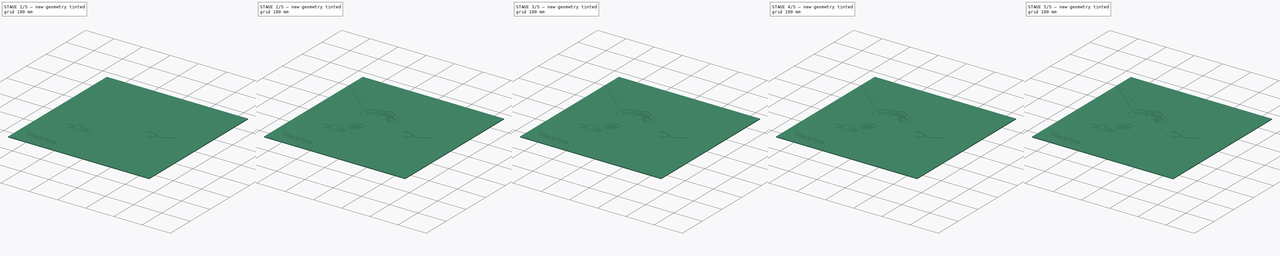
[diagram: build sequence overview — one tinted view per stage of 5, left to right]
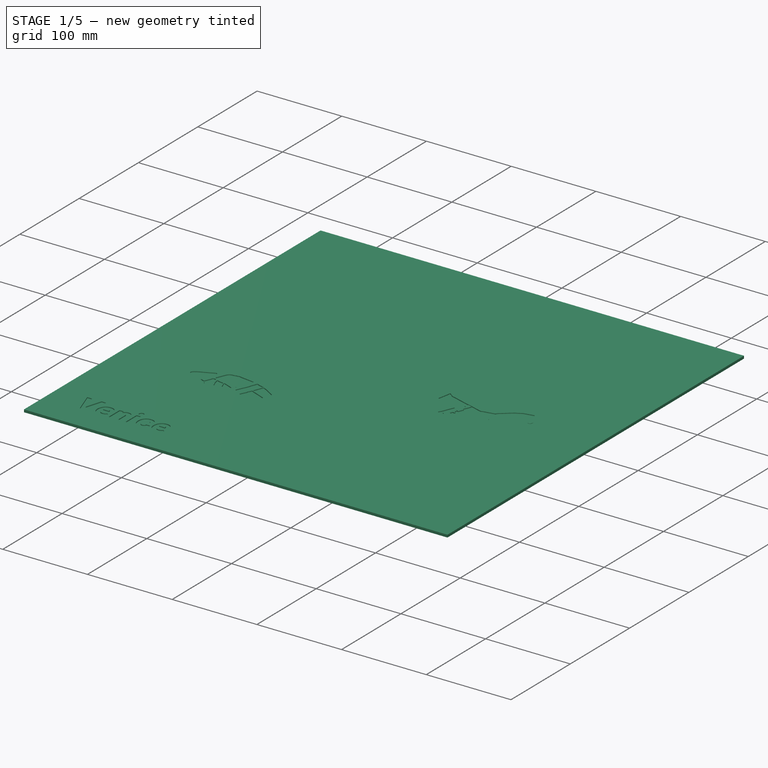
[diagram: stage 1 of 5 — iso view after this stage's code; geometry added in this stage tinted green]
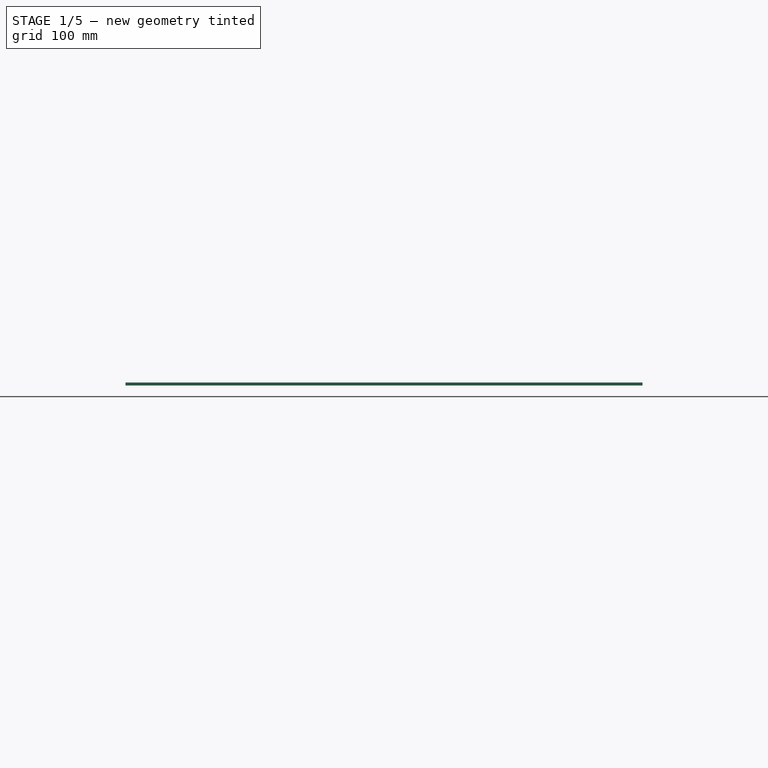
[diagram: stage 1 of 5 — front view after this stage's code; geometry added in this stage tinted green]
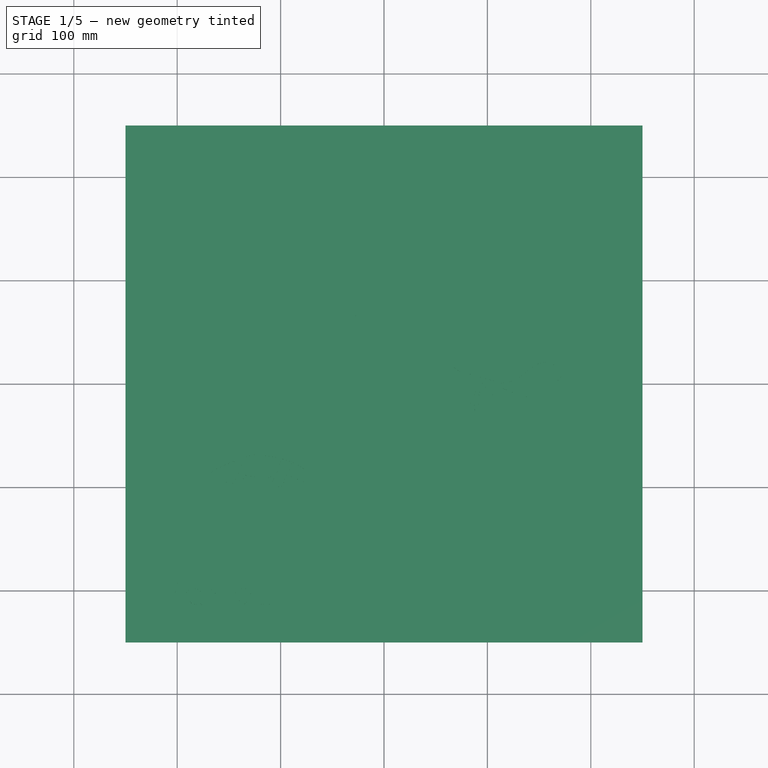
[diagram: stage 1 of 5 — top view after this stage's code; geometry added in this stage tinted green]
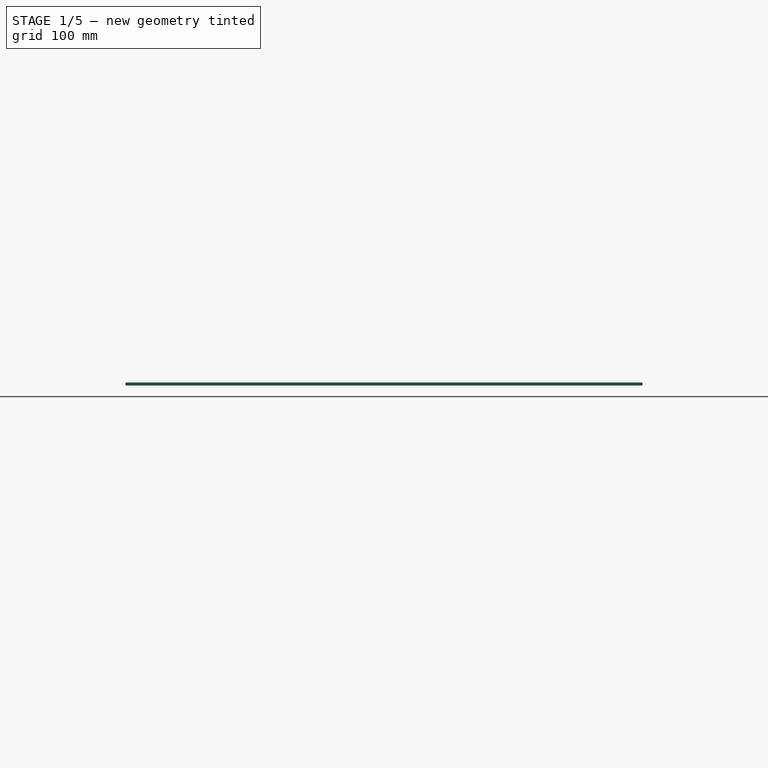
[diagram: stage 1 of 5 — right view after this stage's code; geometry added in this stage tinted green]
FCSTD DOCUMENT  (FreeCAD 0.17R13541 (Git))
Label: map3d
License: All rights reserved
LicenseURL: http://en.wikipedia.org/wiki/All_rights_reserved
objects: Part::Extrusion×144, Part::Feature×141, Part::MultiFuse×29, Part::Cut×9, Part::Part2DObjectPython×8, Sketcher::SketchObject×1, PartDesign::Pad×1, PartDesign::Body×1
note: 335 computed .brp shape members not serialized (recipe doc carries the construction recipe); baked Part::Feature solids carry a one-line shape summary decoded from their .brp

FEATURE [Sketcher::SketchObject] Sketch
  MapMode = 5
  Support = -> [XY_Plane]
  sketch-geometry (4):
    g0: LineSegment StartX=-250 StartY=250 StartZ=0 EndX=250 EndY=250 EndZ=0
    g1: LineSegment StartX=250 StartY=250 StartZ=0 EndX=250 EndY=-250 EndZ=0
    g2: LineSegment StartX=250 StartY=-250 StartZ=0 EndX=-250 EndY=-250 EndZ=0
    g3: LineSegment StartX=-250 StartY=-250 StartZ=0 EndX=-250 EndY=250 EndZ=0
  constraints (12):
    c: Coincident(g0,g1)
    c: Coincident(g1,g2)
    c: Coincident(g2,g3)
    c: Coincident(g3,g0)
    c: Horizontal(g0)
    c: Horizontal(g2)
    c: Vertical(g1)
    c: Vertical(g3)
    c: DistanceX(g0,g0) = 500
    c: DistanceY(g1,g1) = 500
    c: DistanceX(g-1,g0) = 250
    c: DistanceY(g-1,g0) = 250
FEATURE [PartDesign::Pad] Pad
  Length = 3
  Length2 = 100
  Profile = -> Sketch
  Type = 0
FEATURE [Part::Extrusion] Extrude010
  Base = -> Wire027
  Dir = (0,0,-1)
  DirMode = 0
  FaceMakerClass = Part::FaceMakerBullseye
  LengthFwd = 1
  LengthRev = 0
  Solid = true
  Symmetric = false
FEATURE [Part::Extrusion] Extrude011
  Base = -> Wire029
  Dir = (0,0,-1)
  DirMode = 0
  FaceMakerClass = Part::FaceMakerBullseye
  LengthFwd = 1
  LengthRev = 0
  Solid = true
  Symmetric = false
FEATURE [Part::Extrusion] Extrude012
  Base = -> Wire030
  Dir = (0,0,-1)
  DirMode = 0
  FaceMakerClass = Part::FaceMakerBullseye
  LengthFwd = 1
  LengthRev = 0
  Solid = true
  Symmetric = false
FEATURE [Part::Extrusion] Extrude013
  Base = -> Wire031
  Dir = (0,0,-1)
  DirMode = 0
  FaceMakerClass = Part::FaceMakerBullseye
  LengthFwd = 1
  LengthRev = 0
  Solid = true
  Symmetric = false
FEATURE [Part::Extrusion] Extrude016
  Base = -> Wire036
  Dir = (0,0,-1)
  DirMode = 0
  FaceMakerClass = Part::FaceMakerBullseye
  LengthFwd = 1
  LengthRev = 0
  Solid = true
  Symmetric = false
FEATURE [Part::Extrusion] Extrude017
  Base = -> Wire037
  Dir = (0,0,-1)
  DirMode = 0
  FaceMakerClass = Part::FaceMakerBullseye
  LengthFwd = 1
  LengthRev = 0
  Solid = true
  Symmetric = false
FEATURE [Part::Extrusion] Extrude018
  Base = -> Wire038
  Dir = (0,0,-1)
  DirMode = 0
  FaceMakerClass = Part::FaceMakerBullseye
  LengthFwd = 1
  LengthRev = 0
  Solid = true
  Symmetric = false
FEATURE [Part::Extrusion] Extrude019
  Base = -> Wire039
  Dir = (0,0,-1)
  DirMode = 0
  FaceMakerClass = Part::FaceMakerBullseye
  LengthFwd = 1
  LengthRev = 0
  Solid = true
  Symmetric = false
FEATURE [Part::Extrusion] Extrude020
  Base = -> Wire040
  Dir = (0,0,-1)
  DirMode = 0
  FaceMakerClass = Part::FaceMakerBullseye
  LengthFwd = 1
  LengthRev = 0
  Solid = true
  Symmetric = false
FEATURE [Part::Extrusion] Extrude021
  Base = -> Wire041
  Dir = (0,0,-1)
  DirMode = 0
  FaceMakerClass = Part::FaceMakerBullseye
  LengthFwd = 1
  LengthRev = 0
  Solid = true
  Symmetric = false
FEATURE [Part::Extrusion] Extrude033  label="Extrude033 ok"
  Base = -> Wire051
  Dir = (0,0,-1)
  DirMode = 0
  FaceMakerClass = Part::FaceMakerBullseye
  LengthFwd = 1
  LengthRev = 0
  Solid = true
  Symmetric = false
FEATURE [Part::Extrusion] Extrude057
  Base = -> Wire102
  Dir = (0,0,-1)
  DirMode = 0
  FaceMakerClass = Part::FaceMakerBullseye
  LengthFwd = 1
  LengthRev = 0
  Solid = true
  Symmetric = false
FEATURE [Part::Extrusion] Extrude058
  Base = -> Wire103
  Dir = (0,0,-1)
  DirMode = 0
  FaceMakerClass = Part::FaceMakerBullseye
  LengthFwd = 1
  LengthRev = 0
  Solid = true
  Symmetric = false
FEATURE [Part::Extrusion] Extrude059
  Base = -> Wire104
  Dir = (0,0,-1)
  DirMode = 0
  FaceMakerClass = Part::FaceMakerBullseye
  LengthFwd = 1
  LengthRev = 0
  Solid = true
  Symmetric = false
FEATURE [Part::Extrusion] Extrude060
  Base = -> Wire105
  Dir = (0,0,-1)
  DirMode = 0
  FaceMakerClass = Part::FaceMakerBullseye
  LengthFwd = 1
  LengthRev = 0
  Solid = true
  Symmetric = false
FEATURE [Part::Extrusion] Extrude061
  Base = -> Wire106
  Dir = (0,0,-1)
  DirMode = 0
  FaceMakerClass = Part::FaceMakerBullseye
  LengthFwd = 1
  LengthRev = 0
  Solid = true
  Symmetric = false
FEATURE [Part::Extrusion] Extrude062
  Base = -> Wire107
  Dir = (0,0,-1)
  DirMode = 0
  FaceMakerClass = Part::FaceMakerBullseye
  LengthFwd = 1
  LengthRev = 0
  Solid = true
  Symmetric = false
FEATURE [Part::Extrusion] Extrude063
  Base = -> Wire108
  Dir = (0,0,-1)
  DirMode = 0
  FaceMakerClass = Part::FaceMakerBullseye
  LengthFwd = 1
  LengthRev = 0
  Solid = true
  Symmetric = false
FEATURE [Part::Extrusion] Extrude064
  Base = -> Wire109
  Dir = (0,0,-1)
  DirMode = 0
  FaceMakerClass = Part::FaceMakerBullseye
  LengthFwd = 1
  LengthRev = 0
  Solid = true
  Symmetric = false
FEATURE [Part::Extrusion] Extrude135
  Base = -> Face011
  Dir = (0,0,-1)
  DirMode = 0
  FaceMakerClass = Part::FaceMakerBullseye
  LengthFwd = 1
  LengthRev = 0
  Solid = false
  Symmetric = false
FEATURE [Part::Extrusion] Extrude136
  Base = -> Face012
  Dir = (0,0,-1)
  DirMode = 0
  FaceMakerClass = Part::FaceMakerBullseye
  LengthFwd = 1
  LengthRev = 0
  Solid = false
  Symmetric = false
FEATURE [Part::Extrusion] Extrude137
  Base = -> Face013
  Dir = (0,0,-1)
  DirMode = 0
  FaceMakerClass = Part::FaceMakerBullseye
  LengthFwd = 1
  LengthRev = 0
  Solid = false
  Symmetric = false
FEATURE [Part::Cut] Cut
  Base = -> Extrude136
  Tool = -> Extrude137
FEATURE [Part::Extrusion] Extrude138
  Base = -> Face014
  Dir = (0,0,-1)
  DirMode = 0
  FaceMakerClass = Part::FaceMakerBullseye
  LengthFwd = 1
  LengthRev = 0
  Solid = false
  Symmetric = false
FEATURE [Part::Extrusion] Extrude139
  Base = -> Face015
  Dir = (0,0,-1)
  DirMode = 0
  FaceMakerClass = Part::FaceMakerBullseye
  LengthFwd = 1
  LengthRev = 0
  Solid = false
  Symmetric = false
FEATURE [Part::Extrusion] Extrude140
  Base = -> Face016
  Dir = (0,0,-1)
  DirMode = 0
  FaceMakerClass = Part::FaceMakerBullseye
  LengthFwd = 1
  LengthRev = 0
  Solid = false
  Symmetric = false
FEATURE [Part::Extrusion] Extrude141
  Base = -> Face017
  Dir = (0,0,-1)
  DirMode = 0
  FaceMakerClass = Part::FaceMakerBullseye
  LengthFwd = 1
  LengthRev = 0
  Solid = false
  Symmetric = false
FEATURE [Part::Extrusion] Extrude142
  Base = -> Face018
  Dir = (0,0,-1)
  DirMode = 0
  FaceMakerClass = Part::FaceMakerBullseye
  LengthFwd = 1
  LengthRev = 0
  Solid = false
  Symmetric = false
FEATURE [Part::Extrusion] Extrude143
  Base = -> Face019
  Dir = (0,0,-1)
  DirMode = 0
  FaceMakerClass = Part::FaceMakerBullseye
  LengthFwd = 1
  LengthRev = 0
  Solid = false
  Symmetric = false
FEATURE [Part::Cut] Cut001
  Base = -> Extrude142
  Tool = -> Extrude143
FEATURE [Part::MultiFuse] Fusion
  Shapes = -> [Extrude011,Extrude012,Extrude016,Extrude017,Extrude018,Extrude020,Extrude019,Extrude013,Extrude021]
FEATURE [Part::MultiFuse] Fusion025  label="Fusion025 ok"
  Shapes = -> [Extrude057,Extrude058,Extrude060,Extrude059,Extrude061,Extrude062,Extrude064,Extrude063]
FEATURE [Part::MultiFuse] Fusion028
  Shapes = -> [Extrude135,Cut,Extrude138,Extrude139,Extrude140,Extrude141,Cut001]
FEATURE [Part::Cut] Cut002
  Base = -> Pad
  Tool = -> Extrude033
FEATURE [Part::Cut] Cut003
  Base = -> Cut002
  Tool = -> Fusion028
FEATURE [Part::Cut] Cut004
  Base = -> Cut003
  Tool = -> Fusion025
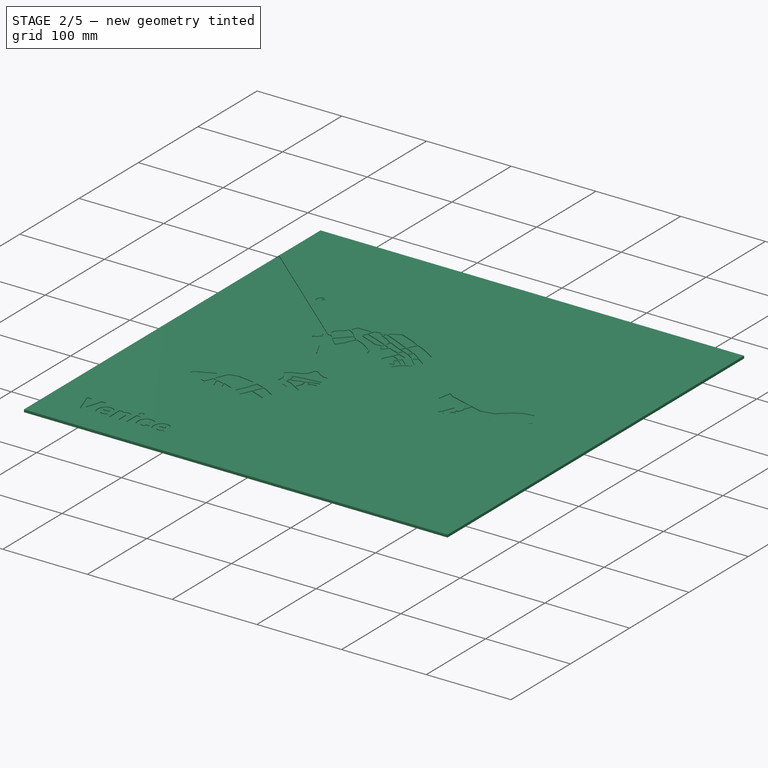
[diagram: stage 2 of 5 — iso view after this stage's code; geometry added in this stage tinted green]
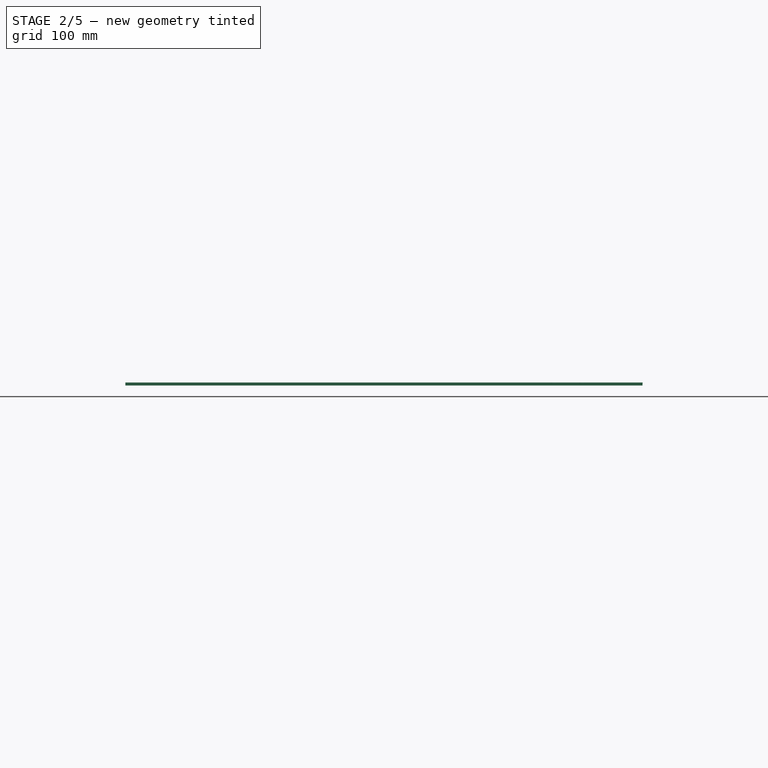
[diagram: stage 2 of 5 — front view after this stage's code; geometry added in this stage tinted green]
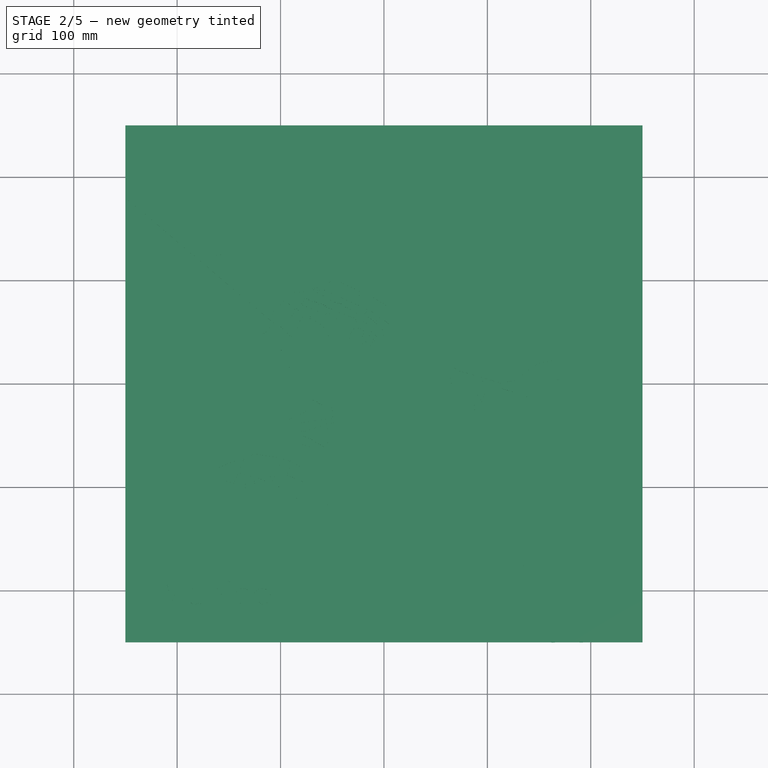
[diagram: stage 2 of 5 — top view after this stage's code; geometry added in this stage tinted green]
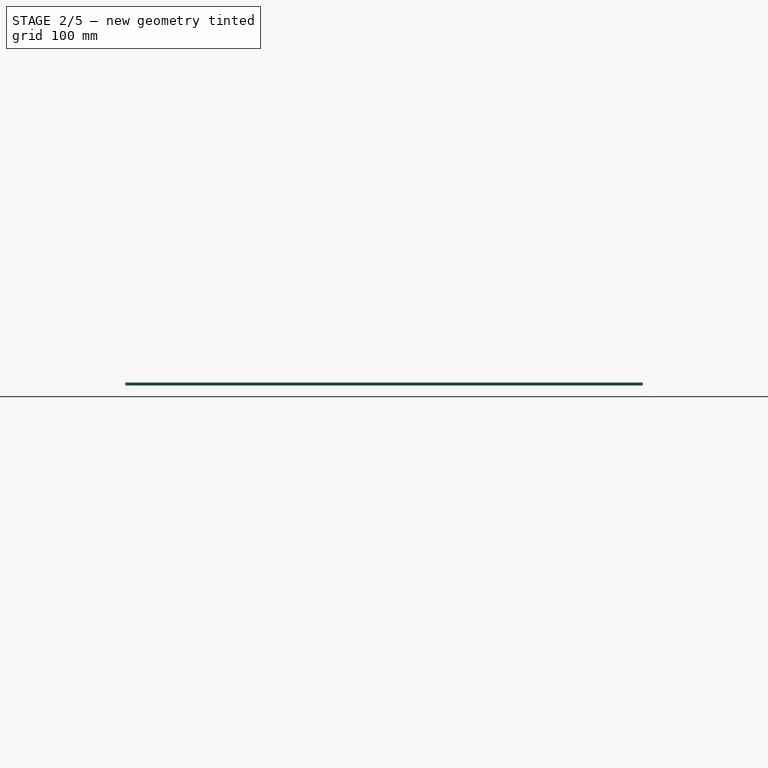
[diagram: stage 2 of 5 — right view after this stage's code; geometry added in this stage tinted green]
FEATURE [PartDesign::Body] Body
  Group = -> [Sketch,Pad]
  Origin = -> Origin
  Tip = -> Pad
FEATURE [Part::Feature] Face
  Placement = pos=(-594.5,310.5,3) rot=(0,0,1;0rad)
  shape: bbox 198 x 164.9 x 2e-07 mm, 1 faces, 0 solids (baked)
FEATURE [Part::Feature] Wire
  Placement = pos=(-594.5,310.5,3) rot=(0,0,1;0rad)
  shape: bbox 62.92 x 46.93 x 2e-07 mm, 0 faces, 0 solids (baked)
FEATURE [Part::Feature] Wire001
  Placement = pos=(-594.5,310.5,3) rot=(0,0,1;0rad)
  shape: bbox 86.61 x 82.98 x 2e-07 mm, 0 faces, 0 solids (baked)
FEATURE [Part::Feature] Wire002
  Placement = pos=(-594.5,310.5,3) rot=(0,0,1;0rad)
  shape: bbox 43.42 x 56.2 x 2e-07 mm, 0 faces, 0 solids (baked)
FEATURE [Part::Feature] Wire003
  Placement = pos=(-594.5,310.5,3) rot=(0,0,1;0rad)
  shape: bbox 23.73 x 24.24 x 2e-07 mm, 0 faces, 0 solids (baked)
FEATURE [Part::Feature] Wire004
  Placement = pos=(-594.5,310.5,3) rot=(0,0,1;0rad)
  shape: bbox 69.2 x 46.2 x 2e-07 mm, 0 faces, 0 solids (baked)
FEATURE [Part::Feature] Wire005
  Placement = pos=(-594.5,310.5,3) rot=(0,0,1;0rad)
  shape: bbox 20.33 x 23.81 x 2e-07 mm, 0 faces, 0 solids (baked)
FEATURE [Part::Feature] Wire006
  Placement = pos=(-594.5,310.5,3) rot=(0,0,1;0rad)
  shape: bbox 29.71 x 29.6 x 2e-07 mm, 0 faces, 0 solids (baked)
FEATURE [Part::Feature] Wire007
  Placement = pos=(-594.5,310.5,3) rot=(0,0,1;0rad)
  shape: bbox 24.74 x 18 x 2e-07 mm, 0 faces, 0 solids (baked)
FEATURE [Part::Feature] Wire008
  Placement = pos=(-594.5,310.5,3) rot=(0,0,1;0rad)
  shape: bbox 13.5 x 6.958 x 2e-07 mm, 0 faces, 0 solids (baked)
FEATURE [Part::Feature] Wire009
  Placement = pos=(-594.5,310.5,3) rot=(0,0,1;0rad)
  shape: bbox 18.97 x 8.806 x 2e-07 mm, 0 faces, 0 solids (baked)
FEATURE [Part::Feature] Wire010
  Placement = pos=(-594.5,310.5,3) rot=(0,0,1;0rad)
  shape: bbox 32.39 x 22.8 x 2e-07 mm, 0 faces, 0 solids (baked)
FEATURE [Part::Feature] Wire011
  Placement = pos=(-594.5,310.5,3) rot=(0,0,1;0rad)
  shape: bbox 18.4 x 20.94 x 2e-07 mm, 0 faces, 0 solids (baked)
FEATURE [Part::Feature] Wire012
  Placement = pos=(-594.5,310.5,3) rot=(0,0,1;0rad)
  shape: bbox 8.898 x 17.58 x 2e-07 mm, 0 faces, 0 solids (baked)
FEATURE [Part::Feature] Wire013
  Placement = pos=(-594.5,310.5,3) rot=(0,0,1;0rad)
  shape: bbox 17.67 x 13.29 x 2e-07 mm, 0 faces, 0 solids (baked)
FEATURE [Part::Feature] Wire014
  Placement = pos=(-594.5,310.5,3) rot=(0,0,1;0rad)
  shape: bbox 28.97 x 19.54 x 2e-07 mm, 0 faces, 0 solids (baked)
FEATURE [Part::Feature] Wire015
  Placement = pos=(-594.5,310.5,3) rot=(0,0,1;0rad)
  shape: bbox 43.53 x 49 x 2e-07 mm, 0 faces, 0 solids (baked)
FEATURE [Part::Feature] Wire016
  Placement = pos=(-594.5,310.5,3) rot=(0,0,1;0rad)
  shape: bbox 30.27 x 47.65 x 2e-07 mm, 0 faces, 0 solids (baked)
FEATURE [Part::Feature] Wire017
  Placement = pos=(-594.5,310.5,3) rot=(0,0,1;0rad)
  shape: bbox 31.5 x 11.58 x 2e-07 mm, 0 faces, 0 solids (baked)
FEATURE [Part::Feature] Wire018
  Placement = pos=(-594.5,310.5,3) rot=(0,0,1;0rad)
  shape: bbox 15.89 x 12.51 x 2e-07 mm, 0 faces, 0 solids (baked)
FEATURE [Part::Feature] Wire019
  Placement = pos=(-594.5,310.5,3) rot=(0,0,1;0rad)
  shape: bbox 17.45 x 20.23 x 2e-07 mm, 0 faces, 0 solids (baked)
FEATURE [Part::Feature] Wire020
  Placement = pos=(-594.5,310.5,3) rot=(0,0,1;0rad)
  shape: bbox 12.86 x 6.521 x 2e-07 mm, 0 faces, 0 solids (baked)
FEATURE [Part::Feature] Wire021
  Placement = pos=(-594.5,310.5,3) rot=(0,0,1;0rad)
  shape: bbox 26.55 x 29.15 x 2e-07 mm, 0 faces, 0 solids (baked)
FEATURE [Part::Feature] Wire022
  Placement = pos=(-594.5,310.5,3) rot=(0,0,1;0rad)
  shape: bbox 20.17 x 19.96 x 2e-07 mm, 0 faces, 0 solids (baked)
FEATURE [Part::Feature] Wire023
  Placement = pos=(-594.5,310.5,3) rot=(0,0,1;0rad)
  shape: bbox 18.15 x 21.62 x 2e-07 mm, 0 faces, 0 solids (baked)
FEATURE [Part::Feature] Wire024
  Placement = pos=(-594.5,310.5,3) rot=(0,0,1;0rad)
  shape: bbox 12.37 x 21.05 x 2e-07 mm, 0 faces, 0 solids (baked)
FEATURE [Part::Feature] Wire025
  Placement = pos=(-594.5,310.5,3) rot=(0,0,1;0rad)
  shape: bbox 17.04 x 13.37 x 2e-07 mm, 0 faces, 0 solids (baked)
FEATURE [Part::Feature] Wire026
  Placement = pos=(-594.5,310.5,3) rot=(0,0,1;0rad)
  shape: bbox 37.37 x 21.45 x 2e-07 mm, 0 faces, 0 solids (baked)
FEATURE [Part::Feature] Wire027
  Placement = pos=(-594.5,310.5,3) rot=(0,0,1;0rad)
  shape: bbox 32.45 x 25.08 x 2e-07 mm, 0 faces, 0 solids (baked)
FEATURE [Part::Feature] Wire028
  Placement = pos=(-594.5,310.5,3) rot=(0,0,1;0rad)
  shape: bbox 34.71 x 20.15 x 2e-07 mm, 0 faces, 0 solids (baked)
FEATURE [Part::Feature] Wire029
  Placement = pos=(-594.5,310.5,3) rot=(0,0,1;0rad)
  shape: bbox 14.58 x 9.889 x 2e-07 mm, 0 faces, 0 solids (baked)
FEATURE [Part::Feature] Wire030
  Placement = pos=(-594.5,310.5,3) rot=(0,0,1;0rad)
  shape: bbox 14.21 x 11.23 x 2e-07 mm, 0 faces, 0 solids (baked)
FEATURE [Part::Feature] Wire031
  Placement = pos=(-594.5,310.5,3) rot=(0,0,1;0rad)
  shape: bbox 14.86 x 13.11 x 2e-07 mm, 0 faces, 0 solids (baked)
FEATURE [Part::Feature] Wire032
  Placement = pos=(-594.5,310.5,3) rot=(0,0,1;0rad)
  shape: bbox 29.1 x 20.57 x 2e-07 mm, 0 faces, 0 solids (baked)
FEATURE [Part::Feature] Wire033
  Placement = pos=(-594.5,310.5,3) rot=(0,0,1;0rad)
  shape: bbox 22.92 x 14.63 x 2e-07 mm, 0 faces, 0 solids (baked)
FEATURE [Part::Feature] Wire034
  Placement = pos=(-594.5,310.5,3) rot=(0,0,1;0rad)
  shape: bbox 8.196 x 7.946 x 2e-07 mm, 0 faces, 0 solids (baked)
FEATURE [Part::Feature] Wire035
  Placement = pos=(-594.5,310.5,3) rot=(0,0,1;0rad)
  shape: bbox 29.64 x 14.36 x 2e-07 mm, 0 faces, 0 solids (baked)
FEATURE [Part::Feature] Wire036
  Placement = pos=(-594.5,310.5,3) rot=(0,0,1;0rad)
  shape: bbox 29.13 x 23.31 x 2e-07 mm, 0 faces, 0 solids (baked)
FEATURE [Part::Feature] Wire037
  Placement = pos=(-594.5,310.5,3) rot=(0,0,1;0rad)
  shape: bbox 13.2 x 10.59 x 2e-07 mm, 0 faces, 0 solids (baked)
FEATURE [Part::Feature] Wire038
  Placement = pos=(-594.5,310.5,3) rot=(0,0,1;0rad)
  shape: bbox 16.43 x 16.59 x 2e-07 mm, 0 faces, 0 solids (baked)
FEATURE [Part::Feature] Wire039
  Placement = pos=(-594.5,310.5,3) rot=(0,0,1;0rad)
  shape: bbox 11.7 x 10.87 x 2e-07 mm, 0 faces, 0 solids (baked)
FEATURE [Part::Feature] Wire040
  Placement = pos=(-594.5,310.5,3) rot=(0,0,1;0rad)
  shape: bbox 11.18 x 14.54 x 2e-07 mm, 0 faces, 0 solids (baked)
FEATURE [Part::Feature] Wire041
  Placement = pos=(-594.5,310.5,3) rot=(0,0,1;0rad)
  shape: bbox 16.4 x 16.9 x 2e-07 mm, 0 faces, 0 solids (baked)
FEATURE [Part::Feature] Wire042
  Placement = pos=(-594.5,310.5,3) rot=(0,0,1;0rad)
  shape: bbox 24.74 x 22.91 x 2e-07 mm, 0 faces, 0 solids (baked)
FEATURE [Part::Feature] Wire043
  Placement = pos=(-594.5,310.5,3) rot=(0,0,1;0rad)
  shape: bbox 9.897 x 10.4 x 2e-07 mm, 0 faces, 0 solids (baked)
FEATURE [Part::Feature] Wire044
  Placement = pos=(-594.5,310.5,3) rot=(0,0,1;0rad)
  shape: bbox 9.581 x 7.718 x 2e-07 mm, 0 faces, 0 solids (baked)
FEATURE [Part::Feature] Wire045
  Placement = pos=(-594.5,310.5,3) rot=(0,0,1;0rad)
  shape: bbox 8.171 x 7.632 x 2e-07 mm, 0 faces, 0 solids (baked)
FEATURE [Part::Feature] Wire046
  Placement = pos=(-594.5,310.5,3) rot=(0,0,1;0rad)
  shape: bbox 5.986 x 6.844 x 2e-07 mm, 0 faces, 0 solids (baked)
FEATURE [Part::Feature] Face002
  Placement = pos=(-594.5,310.5,3) rot=(0,0,1;0rad)
  shape: bbox 12.8 x 7.587 x 2e-07 mm, 1 faces, 0 solids (baked)
FEATURE [Part::Feature] Wire047
  Placement = pos=(-594.5,310.5,3) rot=(0,0,1;0rad)
  shape: bbox 35.44 x 20.96 x 2e-07 mm, 0 faces, 0 solids (baked)
FEATURE [Part::Feature] Wire048
  Placement = pos=(-594.5,310.5,3) rot=(0,0,1;0rad)
  shape: bbox 17.75 x 32.73 x 2e-07 mm, 0 faces, 0 solids (baked)
FEATURE [Part::Feature] Wire049
  Placement = pos=(-594.5,310.5,3) rot=(0,0,1;0rad)
  shape: bbox 16.67 x 31.16 x 2e-07 mm, 0 faces, 0 solids (baked)
FEATURE [Part::Feature] Wire050
  Placement = pos=(-594.5,310.5,3) rot=(0,0,1;0rad)
  shape: bbox 32.43 x 34.15 x 2e-07 mm, 0 faces, 0 solids (baked)
FEATURE [Part::Feature] Wire051
  Placement = pos=(-594.5,310.5,3) rot=(0,0,1;0rad)
  shape: bbox 108.1 x 48.68 x 2e-07 mm, 0 faces, 0 solids (baked)
FEATURE [Part::Feature] Wire052
  Placement = pos=(-594.5,310.5,3) rot=(0,0,1;0rad)
  shape: bbox 59.4 x 36.62 x 2e-07 mm, 0 faces, 0 solids (baked)
FEATURE [Part::Feature] Wire053
  Placement = pos=(-594.5,310.5,3) rot=(0,0,1;0rad)
  shape: bbox 45.06 x 40.2 x 2e-07 mm, 0 faces, 0 solids (baked)
FEATURE [Part::Feature] Wire055
  Placement = pos=(-594.5,310.5,3) rot=(0,0,1;0rad)
  shape: bbox 19.92 x 18.15 x 2e-07 mm, 0 faces, 0 solids (baked)
FEATURE [Part::Feature] Wire056
  Placement = pos=(-594.5,310.5,3) rot=(0,0,1;0rad)
  shape: bbox 9.577 x 9.875 x 2e-07 mm, 0 faces, 0 solids (baked)
FEATURE [Part::Feature] Wire057
  Placement = pos=(-594.5,310.5,3) rot=(0,0,1;0rad)
  shape: bbox 17.96 x 28.53 x 2e-07 mm, 0 faces, 0 solids (baked)
FEATURE [Part::Feature] Wire058
  Placement = pos=(-594.5,310.5,3) rot=(0,0,1;0rad)
  shape: bbox 9.032 x 24.42 x 2e-07 mm, 0 faces, 0 solids (baked)
FEATURE [Part::Feature] Wire059
  Placement = pos=(-594.5,310.5,3) rot=(0,0,1;0rad)
  shape: bbox 9.249 x 20.38 x 2e-07 mm, 0 faces, 0 solids (baked)
FEATURE [Part::Feature] Wire060
  Placement = pos=(-594.5,310.5,3) rot=(0,0,1;0rad)
  shape: bbox 31.04 x 68.69 x 2e-07 mm, 0 faces, 0 solids (baked)
FEATURE [Part::Feature] Wire062
  Placement = pos=(-594.5,310.5,3) rot=(0,0,1;0rad)
  shape: bbox 28.28 x 31.79 x 2e-07 mm, 0 faces, 0 solids (baked)
FEATURE [Part::Feature] Wire063
  Placement = pos=(-594.5,310.5,3) rot=(0,0,1;0rad)
  shape: bbox 50.65 x 25.96 x 2e-07 mm, 0 faces, 0 solids (baked)
FEATURE [Part::Feature] Wire064
  Placement = pos=(-594.5,310.5,3) rot=(0,0,1;0rad)
  shape: bbox 12.88 x 19.28 x 2e-07 mm, 0 faces, 0 solids (baked)
FEATURE [Part::Feature] Wire065
  Placement = pos=(-594.5,310.5,3) rot=(0,0,1;0rad)
  shape: bbox 15.07 x 19.47 x 2e-07 mm, 0 faces, 0 solids (baked)
FEATURE [Part::Feature] Wire066
  Placement = pos=(-594.5,310.5,3) rot=(0,0,1;0rad)
  shape: bbox 24.05 x 38.8 x 2e-07 mm, 0 faces, 0 solids (baked)
FEATURE [Part::Feature] Wire067
  Placement = pos=(-594.5,310.5,3) rot=(0,0,1;0rad)
  shape: bbox 9.709 x 34.44 x 2e-07 mm, 0 faces, 0 solids (baked)
FEATURE [Part::Feature] Wire068
  Placement = pos=(-594.5,310.5,3) rot=(0,0,1;0rad)
  shape: bbox 12.5 x 7.751 x 2e-07 mm, 0 faces, 0 solids (baked)
FEATURE [Part::Feature] Wire069
  Placement = pos=(-594.5,310.5,3) rot=(0,0,1;0rad)
  shape: bbox 10.33 x 19.85 x 2e-07 mm, 0 faces, 0 solids (baked)
FEATURE [Part::Feature] Wire070
  Placement = pos=(-594.5,310.5,3) rot=(0,0,1;0rad)
  shape: bbox 12.99 x 16.96 x 2e-07 mm, 0 faces, 0 solids (baked)
FEATURE [Part::Feature] Wire071
  Placement = pos=(-594.5,310.5,3) rot=(0,0,1;0rad)
  shape: bbox 14.98 x 15.11 x 2e-07 mm, 0 faces, 0 solids (baked)
FEATURE [Part::Feature] Wire072
  Placement = pos=(-594.5,310.5,3) rot=(0,0,1;0rad)
  shape: bbox 14.59 x 16.13 x 2e-07 mm, 0 faces, 0 solids (baked)
FEATURE [Part::Feature] Face006
  Placement = pos=(-594.5,310.5,3) rot=(0,0,1;0rad)
  shape: bbox 7.169 x 8.649 x 2e-07 mm, 1 faces, 0 solids (baked)
FEATURE [Part::Feature] Face007
  Placement = pos=(-594.5,310.5,3) rot=(0,0,1;0rad)
  shape: bbox 13.19 x 10.73 x 2e-07 mm, 1 faces, 0 solids (baked)
FEATURE [Part::Feature] Wire073
  Placement = pos=(-594.5,310.5,3) rot=(0,0,1;0rad)
  shape: bbox 13.71 x 10.79 x 2e-07 mm, 0 faces, 0 solids (baked)
FEATURE [Part::Feature] Wire074
  Placement = pos=(-594.5,310.5,3) rot=(0,0,1;0rad)
  shape: bbox 23.04 x 16.93 x 2e-07 mm, 0 faces, 0 solids (baked)
FEATURE [Part::Feature] Wire075
  Placement = pos=(-594.5,310.5,3) rot=(0,0,1;0rad)
  shape: bbox 28.22 x 28.27 x 2e-07 mm, 0 faces, 0 solids (baked)
FEATURE [Part::Feature] Wire076
  Placement = pos=(-594.5,310.5,3) rot=(0,0,1;0rad)
  shape: bbox 20.54 x 23.55 x 2e-07 mm, 0 faces, 0 solids (baked)
FEATURE [Part::Feature] Wire077
  Placement = pos=(-594.5,310.5,3) rot=(0,0,1;0rad)
  shape: bbox 16.89 x 22.69 x 2e-07 mm, 0 faces, 0 solids (baked)
FEATURE [Part::Feature] Wire078
  Placement = pos=(-594.5,310.5,3) rot=(0,0,1;0rad)
  shape: bbox 15.54 x 19.52 x 2e-07 mm, 0 faces, 0 solids (baked)
FEATURE [Part::Feature] Wire079
  Placement = pos=(-594.5,310.5,3) rot=(0,0,1;0rad)
  shape: bbox 15.96 x 17.57 x 2e-07 mm, 0 faces, 0 solids (baked)
FEATURE [Part::Feature] Wire080
  Placement = pos=(-594.5,310.5,3) rot=(0,0,1;0rad)
  shape: bbox 15.76 x 19.82 x 2e-07 mm, 0 faces, 0 solids (baked)
FEATURE [Part::Feature] Wire081
  Placement = pos=(-594.5,310.5,3) rot=(0,0,1;0rad)
  shape: bbox 12.75 x 27.08 x 2e-07 mm, 0 faces, 0 solids (baked)
FEATURE [Part::Feature] Wire082
  Placement = pos=(-594.5,310.5,3) rot=(0,0,1;0rad)
  shape: bbox 8.054 x 12.32 x 2e-07 mm, 0 faces, 0 solids (baked)
FEATURE [Part::Feature] Wire083
  Placement = pos=(-594.5,310.5,3) rot=(0,0,1;0rad)
  shape: bbox 23.62 x 27.37 x 2e-07 mm, 0 faces, 0 solids (baked)
FEATURE [Part::Feature] Wire084
  Placement = pos=(-594.5,310.5,3) rot=(0,0,1;0rad)
  shape: bbox 13.82 x 14.76 x 2e-07 mm, 0 faces, 0 solids (baked)
FEATURE [Part::Feature] Wire085
  Placement = pos=(-594.5,310.5,3) rot=(0,0,1;0rad)
  shape: bbox 31.66 x 31.91 x 2e-07 mm, 0 faces, 0 solids (baked)
FEATURE [Part::Feature] Wire086
  Placement = pos=(-594.5,310.5,3) rot=(0,0,1;0rad)
  shape: bbox 19.46 x 14.02 x 2e-07 mm, 0 faces, 0 solids (baked)
FEATURE [Part::Feature] Wire087
  Placement = pos=(-594.5,310.5,3) rot=(0,0,1;0rad)
  shape: bbox 15.57 x 19.37 x 2e-07 mm, 0 faces, 0 solids (baked)
FEATURE [Part::Feature] Wire088
  Placement = pos=(-594.5,310.5,3) rot=(0,0,1;0rad)
  shape: bbox 15.24 x 21.87 x 2e-07 mm, 0 faces, 0 solids (baked)
FEATURE [Part::Feature] Wire089
  Placement = pos=(-594.5,310.5,3) rot=(0,0,1;0rad)
  shape: bbox 8.754 x 12.38 x 2e-07 mm, 0 faces, 0 solids (baked)
FEATURE [Part::Feature] Wire090
  Placement = pos=(-594.5,310.5,3) rot=(0,0,1;0rad)
  shape: bbox 15.51 x 23.69 x 2e-07 mm, 0 faces, 0 solids (baked)
FEATURE [Part::Feature] Wire091
  Placement = pos=(-594.5,310.5,3) rot=(0,0,1;0rad)
  shape: bbox 24.82 x 21.42 x 2e-07 mm, 0 faces, 0 solids (baked)
FEATURE [Part::Feature] Wire092
  Placement = pos=(-594.5,310.5,3) rot=(0,0,1;0rad)
  shape: bbox 13.55 x 12.34 x 2e-07 mm, 0 faces, 0 solids (baked)
FEATURE [Part::Feature] Wire093
  Placement = pos=(-594.5,310.5,3) rot=(0,0,1;0rad)
  shape: bbox 9.696 x 7.203 x 2e-07 mm, 0 faces, 0 solids (baked)
FEATURE [Part::Feature] Wire094
  Placement = pos=(-594.5,310.5,3) rot=(0,0,1;0rad)
  shape: bbox 37.73 x 37.84 x 2e-07 mm, 0 faces, 0 solids (baked)
FEATURE [Part::Feature] Wire095
  Placement = pos=(-594.5,310.5,3) rot=(0,0,1;0rad)
  shape: bbox 14.15 x 16.36 x 2e-07 mm, 0 faces, 0 solids (baked)
FEATURE [Part::Feature] Wire096
  Placement = pos=(-594.5,310.5,3) rot=(0,0,1;0rad)
  shape: bbox 11.8 x 13.06 x 2e-07 mm, 0 faces, 0 solids (baked)
FEATURE [Part::Feature] Wire097
  Placement = pos=(-594.5,310.5,3) rot=(0,0,1;0rad)
  shape: bbox 19.1 x 22.42 x 2e-07 mm, 0 faces, 0 solids (baked)
FEATURE [Part::Feature] Wire098
  Placement = pos=(-594.5,310.5,3) rot=(0,0,1;0rad)
  shape: bbox 10.34 x 9.587 x 2e-07 mm, 0 faces, 0 solids (baked)
FEATURE [Part::Feature] Wire099
  Placement = pos=(-594.5,310.5,3) rot=(0,0,1;0rad)
  shape: bbox 25.23 x 31.82 x 2e-07 mm, 0 faces, 0 solids (baked)
FEATURE [Part::Feature] Wire100
  Placement = pos=(-594.5,310.5,3) rot=(0,0,1;0rad)
  shape: bbox 10.75 x 10.74 x 2e-07 mm, 0 faces, 0 solids (baked)
FEATURE [Part::Feature] Wire101
  Placement = pos=(-594.5,310.5,3) rot=(0,0,1;0rad)
  shape: bbox 6.593 x 7.531 x 2e-07 mm, 0 faces, 0 solids (baked)
FEATURE [Part::Feature] Wire102
  Placement = pos=(-594.5,310.5,3) rot=(0,0,1;0rad)
  shape: bbox 23.86 x 20.49 x 2e-07 mm, 0 faces, 0 solids (baked)
FEATURE [Part::Feature] Wire103
  Placement = pos=(-594.5,310.5,3) rot=(0,0,1;0rad)
  shape: bbox 16.44 x 15.19 x 2e-07 mm, 0 faces, 0 solids (baked)
FEATURE [Part::Feature] Wire104
  Placement = pos=(-594.5,310.5,3) rot=(0,0,1;0rad)
  shape: bbox 36.23 x 25.94 x 2e-07 mm, 0 faces, 0 solids (baked)
FEATURE [Part::Feature] Wire105
  Placement = pos=(-594.5,310.5,3) rot=(0,0,1;0rad)
  shape: bbox 11.09 x 11.78 x 2e-07 mm, 0 faces, 0 solids (baked)
FEATURE [Part::Feature] Wire106
  Placement = pos=(-594.5,310.5,3) rot=(0,0,1;0rad)
  shape: bbox 11.91 x 7.952 x 2e-07 mm, 0 faces, 0 solids (baked)
FEATURE [Part::Feature] Wire107
  Placement = pos=(-594.5,310.5,3) rot=(0,0,1;0rad)
  shape: bbox 18.58 x 28.11 x 2e-07 mm, 0 faces, 0 solids (baked)
FEATURE [Part::Feature] Wire108
  Placement = pos=(-594.5,310.5,3) rot=(0,0,1;0rad)
  shape: bbox 21.26 x 18.48 x 2e-07 mm, 0 faces, 0 solids (baked)
FEATURE [Part::Feature] Wire109
  Placement = pos=(-594.5,310.5,3) rot=(0,0,1;0rad)
  shape: bbox 24.33 x 23.84 x 2e-07 mm, 0 faces, 0 solids (baked)
FEATURE [Part::Feature] Wire110
  Placement = pos=(-594.5,310.5,3) rot=(0,0,1;0rad)
  shape: bbox 28.44 x 30.68 x 2e-07 mm, 0 faces, 0 solids (baked)
FEATURE [Part::Feature] Wire111
  Placement = pos=(-594.5,310.5,3) rot=(0,0,1;0rad)
  shape: bbox 15.33 x 13.03 x 2e-07 mm, 0 faces, 0 solids (baked)
FEATURE [Part::Feature] Wire112
  Placement = pos=(-594.5,310.5,3) rot=(0,0,1;0rad)
  shape: bbox 19.15 x 12.55 x 2e-07 mm, 0 faces, 0 solids (baked)
FEATURE [Part::Feature] Face008
  Placement = pos=(-594.5,310.5,3) rot=(0,0,1;0rad)
  shape: bbox 5.783 x 4.666 x 2e-07 mm, 1 faces, 0 solids (baked)
FEATURE [Part::Feature] Wire113
  Placement = pos=(-594.5,310.5,3) rot=(0,0,1;0rad)
  shape: bbox 33.72 x 23.27 x 2e-07 mm, 0 faces, 0 solids (baked)
FEATURE [Part::Feature] Wire114
  Placement = pos=(-594.5,310.5,3) rot=(0,0,1;0rad)
  shape: bbox 52.46 x 43.15 x 2e-07 mm, 0 faces, 0 solids (baked)
FEATURE [Part::Feature] Wire115
  Placement = pos=(-594.5,310.5,3) rot=(0,0,1;0rad)
  shape: bbox 24.79 x 36.56 x 2e-07 mm, 0 faces, 0 solids (baked)
FEATURE [Part::Feature] Wire116
  Placement = pos=(-594.5,310.5,3) rot=(0,0,1;0rad)
  shape: bbox 14.8 x 18.64 x 2e-07 mm, 0 faces, 0 solids (baked)
FEATURE [Part::Feature] Wire117
  Placement = pos=(-594.5,310.5,3) rot=(0,0,1;0rad)
  shape: bbox 23.48 x 29.15 x 2e-07 mm, 0 faces, 0 solids (baked)
FEATURE [Part::Feature] Face009
  Placement = pos=(-594.5,310.5,3) rot=(0,0,1;0rad)
  shape: bbox 91.59 x 138.3 x 2e-07 mm, 1 faces, 0 solids (baked)
FEATURE [Part::Feature] Wire118
  Placement = pos=(-594.5,310.5,3) rot=(0,0,1;0rad)
  shape: bbox 20.81 x 16.64 x 2e-07 mm, 0 faces, 0 solids (baked)
FEATURE [Part::Feature] Face010
  Placement = pos=(-594.5,310.5,3) rot=(0,0,1;0rad)
  shape: bbox 21.67 x 28.07 x 2e-07 mm, 1 faces, 0 solids (baked)
FEATURE [Part::Feature] Face011
  Placement = pos=(-594.5,310.5,3) rot=(0,0,1;0rad)
  shape: bbox 22.66 x 24.91 x 2e-07 mm, 1 faces, 0 solids (baked)
FEATURE [Part::Feature] Face012
  Placement = pos=(-594.5,310.5,3) rot=(0,0,1;0rad)
  shape: bbox 16.8 x 19.19 x 2e-07 mm, 1 faces, 0 solids (baked)
FEATURE [Part::Feature] Face013
  Placement = pos=(-594.5,310.5,3) rot=(0,0,1;0rad)
  shape: bbox 6.876 x 3.832 x 2e-07 mm, 1 faces, 0 solids (baked)
FEATURE [Part::Feature] Face014
  Placement = pos=(-594.5,310.5,3) rot=(0,0,1;0rad)
  shape: bbox 15.98 x 18.85 x 2e-07 mm, 1 faces, 0 solids (baked)
FEATURE [Part::Feature] Face015
  Placement = pos=(-594.5,310.5,3) rot=(0,0,1;0rad)
  shape: bbox 4.961 x 18.51 x 2e-07 mm, 1 faces, 0 solids (baked)
FEATURE [Part::Feature] Face016
  Placement = pos=(-594.5,310.5,3) rot=(0,0,1;0rad)
  shape: bbox 5.542 x 5.115 x 2e-07 mm, 1 faces, 0 solids (baked)
FEATURE [Part::Feature] Face017
  Placement = pos=(-594.5,310.5,3) rot=(0,0,1;0rad)
  shape: bbox 16.22 x 19.19 x 2e-07 mm, 1 faces, 0 solids (baked)
FEATURE [Part::Feature] Face018
  Placement = pos=(-594.5,310.5,3) rot=(0,0,1;0rad)
  shape: bbox 16.8 x 19.19 x 2e-07 mm, 1 faces, 0 solids (baked)
FEATURE [Part::Feature] Face019
  Placement = pos=(-594.5,310.5,3) rot=(0,0,1;0rad)
  shape: bbox 6.876 x 3.832 x 2e-07 mm, 1 faces, 0 solids (baked)
FEATURE [Part::Extrusion] Extrude
  Base = -> Face
  Dir = (0,0,-1)
  DirMode = 0
  FaceMakerClass = Part::FaceMakerBullseye
  LengthFwd = 1
  LengthRev = 0
  Solid = false
  Symmetric = false
FEATURE [Part::Extrusion] Extrude001
  Base = -> Wire003
  Dir = (0,0,1)
  DirMode = 0
  FaceMakerClass = Part::FaceMakerBullseye
  LengthFwd = 1
  LengthRev = 0
  Reversed = true
  Solid = true
  Symmetric = false
FEATURE [Part::Extrusion] Extrude002
  Base = -> Wire004
  Dir = (0,0,-3)
  DirMode = 0
  FaceMakerClass = Part::FaceMakerBullseye
  LengthFwd = 1
  LengthRev = 0
  Solid = true
  Symmetric = false
FEATURE [Part::Extrusion] Extrude003
  Base = -> Wire005
  Dir = (0,0,-3)
  DirMode = 0
  FaceMakerClass = Part::FaceMakerBullseye
  LengthFwd = 1
  LengthRev = 0
  Solid = true
  Symmetric = false
FEATURE [Part::Extrusion] Extrude004
  Base = -> Wire028
  Dir = (0,0,-3)
  DirMode = 0
  FaceMakerClass = Part::FaceMakerBullseye
  LengthFwd = 1
  LengthRev = 0
  Solid = true
  Symmetric = false
FEATURE [Part::Extrusion] Extrude005
  Base = -> Wire032
  Dir = (0,0,-3)
  DirMode = 0
  FaceMakerClass = Part::FaceMakerBullseye
  LengthFwd = 1
  LengthRev = 0
  Solid = true
  Symmetric = false
FEATURE [Part::Extrusion] Extrude006
  Base = -> Wire035
  Dir = (0,0,-3)
  DirMode = 0
  FaceMakerClass = Part::FaceMakerBullseye
  LengthFwd = 1
  LengthRev = 0
  Solid = true
  Symmetric = false
FEATURE [Part::Extrusion] Extrude009
  Base = -> Wire026
  Dir = (0,0,-1)
  DirMode = 0
  FaceMakerClass = Part::FaceMakerBullseye
  LengthFwd = 1
  LengthRev = 0
  Solid = true
  Symmetric = false
FEATURE [Part::Extrusion] Extrude014
  Base = -> Wire033
  Dir = (0,0,-1)
  DirMode = 0
  FaceMakerClass = Part::FaceMakerBullseye
  LengthFwd = 1
  LengthRev = 0
  Solid = true
  Symmetric = false
FEATURE [Part::Extrusion] Extrude015
  Base = -> Wire034
  Dir = (0,0,-1)
  DirMode = 0
  FaceMakerClass = Part::FaceMakerBullseye
  LengthFwd = 1
  LengthRev = 0
  Solid = true
  Symmetric = false
FEATURE [Part::Extrusion] Extrude065
  Base = -> Wire110
  Dir = (0,0,-1)
  DirMode = 0
  FaceMakerClass = Part::FaceMakerBullseye
  LengthFwd = 1
  LengthRev = 0
  Solid = true
  Symmetric = false
FEATURE [Part::Extrusion] Extrude066
  Base = -> Wire111
  Dir = (0,0,-1)
  DirMode = 0
  FaceMakerClass = Part::FaceMakerBullseye
  LengthFwd = 1
  LengthRev = 0
  Solid = true
  Symmetric = false
FEATURE [Part::Extrusion] Extrude067
  Base = -> Wire112
  Dir = (0,0,-1)
  DirMode = 0
  FaceMakerClass = Part::FaceMakerBullseye
  LengthFwd = 1
  LengthRev = 0
  Solid = true
  Symmetric = false
FEATURE [Part::Extrusion] Extrude068
  Base = -> Face008
  Dir = (0,0,-1)
  DirMode = 0
  FaceMakerClass = Part::FaceMakerBullseye
  LengthFwd = 1
  LengthRev = 0
  Solid = true
  Symmetric = false
FEATURE [Part::Extrusion] Extrude069
  Base = -> Wire113
  Dir = (0,0,-1)
  DirMode = 0
  FaceMakerClass = Part::FaceMakerBullseye
  LengthFwd = 1
  LengthRev = 0
  Solid = true
  Symmetric = false
FEATURE [Part::Extrusion] Extrude070
  Base = -> Wire114
  Dir = (0,0,-1)
  DirMode = 0
  FaceMakerClass = Part::FaceMakerBullseye
  LengthFwd = 1
  LengthRev = 0
  Solid = true
  Symmetric = false
FEATURE [Part::Extrusion] Extrude071
  Base = -> Wire115
  Dir = (0,0,-1)
  DirMode = 0
  FaceMakerClass = Part::FaceMakerBullseye
  LengthFwd = 1
  LengthRev = 0
  Solid = true
  Symmetric = false
FEATURE [Part::Extrusion] Extrude072
  Base = -> Wire116
  Dir = (0,0,-1)
  DirMode = 0
  FaceMakerClass = Part::FaceMakerBullseye
  LengthFwd = 1
  LengthRev = 0
  Solid = true
  Symmetric = false
FEATURE [Part::Extrusion] Extrude073
  Base = -> Wire117
  Dir = (0,0,-1)
  DirMode = 0
  FaceMakerClass = Part::FaceMakerBullseye
  LengthFwd = 1
  LengthRev = 0
  Solid = true
  Symmetric = false
FEATURE [Part::Extrusion] Extrude074
  Base = -> Face010
  Dir = (0,0,-1)
  DirMode = 0
  FaceMakerClass = Part::FaceMakerBullseye
  LengthFwd = 1
  LengthRev = 0
  Solid = false
  Symmetric = false
FEATURE [Part::Extrusion] Extrude076
  Base = -> Wire015
  Dir = (0,0,-1)
  DirMode = 0
  FaceMakerClass = Part::FaceMakerBullseye
  LengthFwd = 1
  LengthRev = 0
  Solid = true
  Symmetric = false
FEATURE [Part::Extrusion] Extrude077
  Base = -> Wire017
  Dir = (0,0,-1)
  DirMode = 0
  FaceMakerClass = Part::FaceMakerBullseye
  LengthFwd = 1
  LengthRev = 0
  Solid = true
  Symmetric = false
FEATURE [Part::Extrusion] Extrude078
  Base = -> Wire018
  Dir = (0,0,-1)
  DirMode = 0
  FaceMakerClass = Part::FaceMakerBullseye
  LengthFwd = 1
  LengthRev = 0
  Solid = true
  Symmetric = false
FEATURE [Part::Extrusion] Extrude082
  Base = -> Wire019
  Dir = (0,0,-1)
  DirMode = 0
  FaceMakerClass = Part::FaceMakerBullseye
  LengthFwd = 1
  LengthRev = 0
  Solid = true
  Symmetric = false
FEATURE [Part::Extrusion] Extrude083
  Base = -> Wire020
  Dir = (0,0,-1)
  DirMode = 0
  FaceMakerClass = Part::FaceMakerBullseye
  LengthFwd = 1
  LengthRev = 0
  Solid = true
  Symmetric = false
FEATURE [Part::Extrusion] Extrude127
  Base = -> Face009
  Dir = (0,0,-1)
  DirMode = 0
  FaceMakerClass = Part::FaceMakerBullseye
  LengthFwd = 1
  LengthRev = 0
  Solid = false
  Symmetric = false
FEATURE [Part::Extrusion] Extrude133
  Base = -> Wire056
  Dir = (0,0,-1)
  DirMode = 0
  FaceMakerClass = Part::FaceMakerBullseye
  LengthFwd = 1
  LengthRev = 0
  Solid = true
  Symmetric = false
FEATURE [Part::MultiFuse] Fusion018  label="Fusion018 ok"
  Shapes = -> [Extrude076,Extrude077,Extrude083,Extrude082,Extrude078]
FEATURE [Part::MultiFuse] Fusion021  label="Fusion021 ok"
  Shapes = -> [Extrude,Extrude003,Extrude001,Extrude002,Extrude133]
FEATURE [Part::MultiFuse] Fusion022  label="Fusion022ok"
  Shapes = -> [Extrude009,Extrude004,Extrude005,Extrude006,Extrude014,Extrude015]
FEATURE [Part::MultiFuse] Fusion023  label="Fusion023 ok"
  Shapes = -> [Extrude010,Fusion]
FEATURE [Part::MultiFuse] Fusion027  label="Fusion027 xxx"
  Shapes = -> [Extrude127,Extrude073,Extrude072,Extrude074]
FEATURE [Part::Cut] Cut005
  Base = -> Cut004
  Tool = -> Fusion023
FEATURE [Part::Cut] Cut006
  Base = -> Cut005
  Tool = -> Fusion022
FEATURE [Part::Cut] Cut007
  Base = -> Cut006
  Tool = -> Fusion021
FEATURE [Part::Cut] Cut008
  Base = -> Cut007
  Tool = -> Fusion018
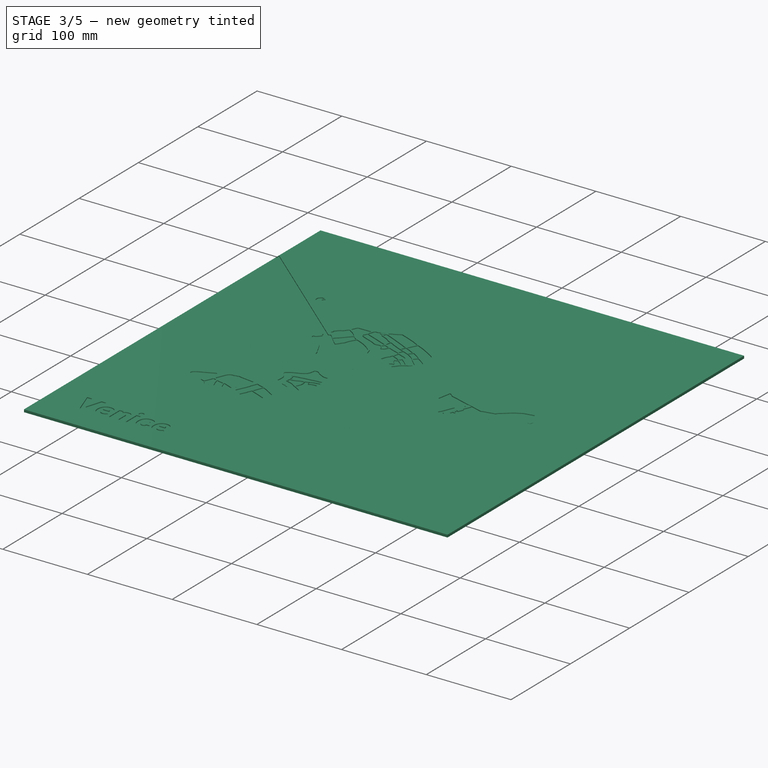
[diagram: stage 3 of 5 — iso view after this stage's code; geometry added in this stage tinted green]
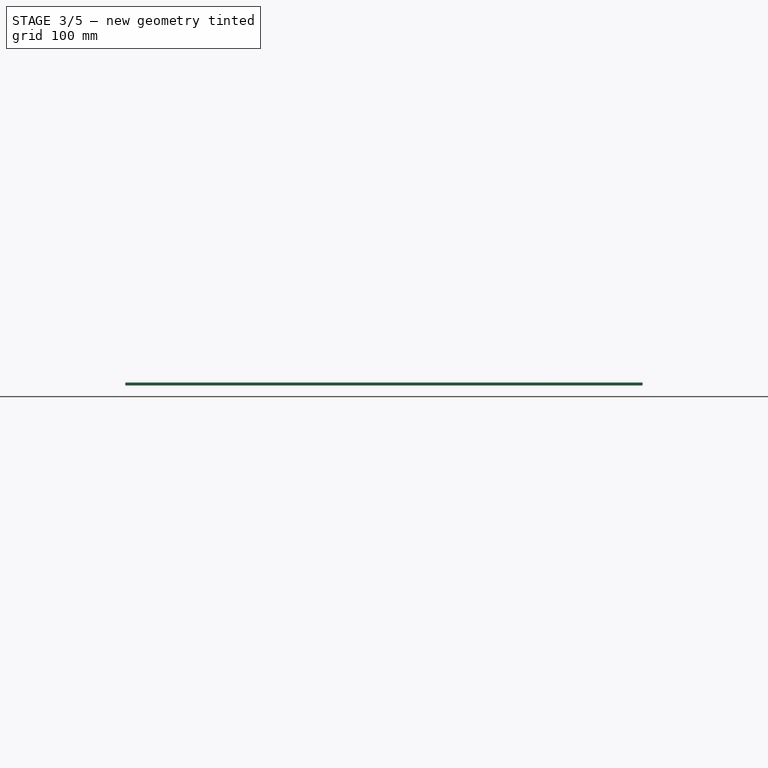
[diagram: stage 3 of 5 — front view after this stage's code; geometry added in this stage tinted green]
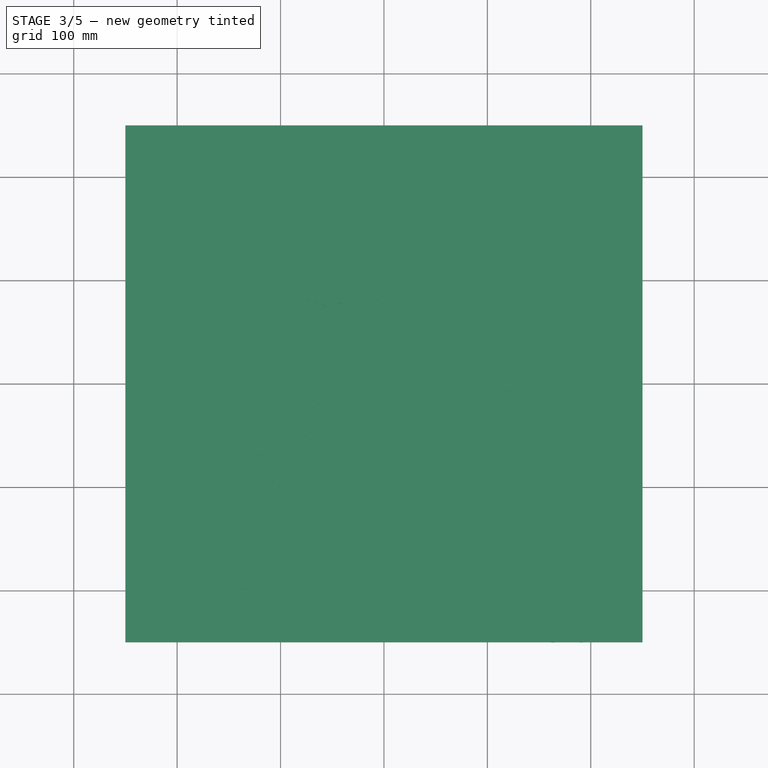
[diagram: stage 3 of 5 — top view after this stage's code; geometry added in this stage tinted green]
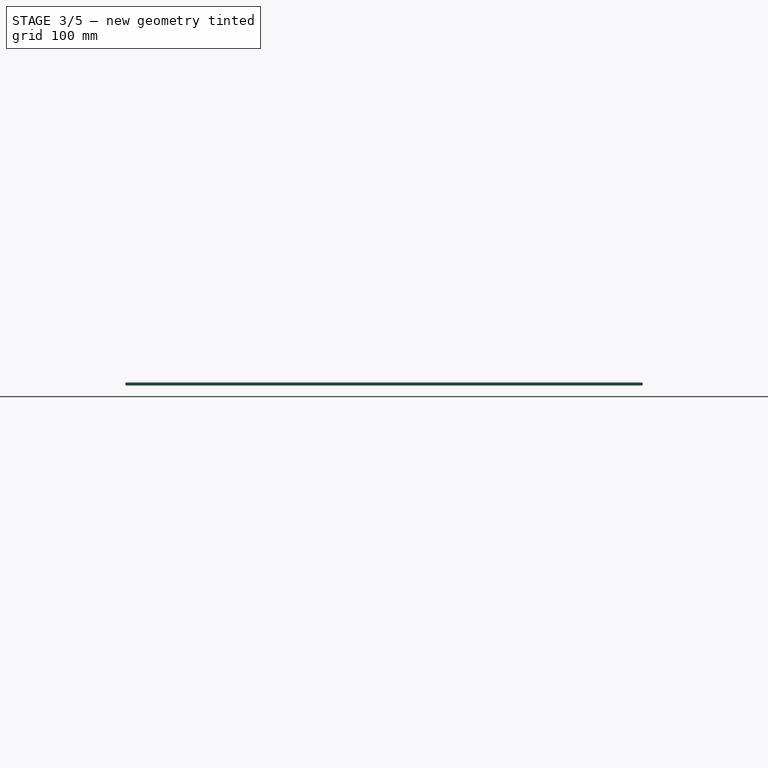
[diagram: stage 3 of 5 — right view after this stage's code; geometry added in this stage tinted green]
FEATURE [Part::Extrusion] Extrude007
  Base = -> Wire
  Dir = (0,0,-1)
  DirMode = 0
  FaceMakerClass = Part::FaceMakerBullseye
  LengthFwd = 1
  LengthRev = 0
  Solid = true
  Symmetric = false
FEATURE [Part::Extrusion] Extrude008
  Base = -> Wire001
  Dir = (0,0,-1)
  DirMode = 0
  FaceMakerClass = Part::FaceMakerBullseye
  LengthFwd = 1
  LengthRev = 0
  Solid = true
  Symmetric = false
FEATURE [Part::Extrusion] Extrude022
  Base = -> Wire042
  Dir = (0,0,-1)
  DirMode = 0
  FaceMakerClass = Part::FaceMakerBullseye
  LengthFwd = 1
  LengthRev = 0
  Solid = true
  Symmetric = false
FEATURE [Part::Extrusion] Extrude023
  Base = -> Wire043
  Dir = (0,0,-1)
  DirMode = 0
  FaceMakerClass = Part::FaceMakerBullseye
  LengthFwd = 1
  LengthRev = 0
  Solid = true
  Symmetric = false
FEATURE [Part::Extrusion] Extrude024
  Base = -> Wire044
  Dir = (0,0,-1)
  DirMode = 0
  FaceMakerClass = Part::FaceMakerBullseye
  LengthFwd = 1
  LengthRev = 0
  Solid = true
  Symmetric = false
FEATURE [Part::Extrusion] Extrude025
  Base = -> Wire045
  Dir = (0,0,-1)
  DirMode = 0
  FaceMakerClass = Part::FaceMakerBullseye
  LengthFwd = 1
  LengthRev = 0
  Solid = true
  Symmetric = false
FEATURE [Part::Extrusion] Extrude026
  Base = -> Wire046
  Dir = (0,0,-1)
  DirMode = 0
  FaceMakerClass = Part::FaceMakerBullseye
  LengthFwd = 1
  LengthRev = 0
  Solid = true
  Symmetric = false
FEATURE [Part::Extrusion] Extrude027
  Base = -> Face002
  Dir = (0,0,-1)
  DirMode = 0
  FaceMakerClass = Part::FaceMakerBullseye
  LengthFwd = 1
  LengthRev = 0
  Solid = true
  Symmetric = false
FEATURE [Part::Extrusion] Extrude028
  Base = -> Wire047
  Dir = (0,0,-1)
  DirMode = 0
  FaceMakerClass = Part::FaceMakerBullseye
  LengthFwd = 1
  LengthRev = 0
  Solid = true
  Symmetric = false
FEATURE [Part::Extrusion] Extrude039
  Base = -> Wire002
  Dir = (0,0,-1)
  DirMode = 0
  FaceMakerClass = Part::FaceMakerBullseye
  LengthFwd = 1
  LengthRev = 0
  Solid = true
  Symmetric = false
FEATURE [Part::Extrusion] Extrude040
  Base = -> Wire006
  Dir = (0,0,-1)
  DirMode = 0
  FaceMakerClass = Part::FaceMakerBullseye
  LengthFwd = 1
  LengthRev = 0
  Solid = true
  Symmetric = false
FEATURE [Part::Extrusion] Extrude041
  Base = -> Wire007
  Dir = (0,0,-1)
  DirMode = 0
  FaceMakerClass = Part::FaceMakerBullseye
  LengthFwd = 1
  LengthRev = 0
  Solid = true
  Symmetric = false
FEATURE [Part::Extrusion] Extrude042
  Base = -> Wire008
  Dir = (0,0,-1)
  DirMode = 0
  FaceMakerClass = Part::FaceMakerBullseye
  LengthFwd = 1
  LengthRev = 0
  Solid = true
  Symmetric = false
FEATURE [Part::Extrusion] Extrude043
  Base = -> Wire009
  Dir = (0,0,-1)
  DirMode = 0
  FaceMakerClass = Part::FaceMakerBullseye
  LengthFwd = 1
  LengthRev = 0
  Solid = true
  Symmetric = false
FEATURE [Part::Extrusion] Extrude044
  Base = -> Wire010
  Dir = (0,0,-1)
  DirMode = 0
  FaceMakerClass = Part::FaceMakerBullseye
  LengthFwd = 1
  LengthRev = 0
  Solid = true
  Symmetric = false
FEATURE [Part::Extrusion] Extrude045
  Base = -> Wire011
  Dir = (0,0,-1)
  DirMode = 0
  FaceMakerClass = Part::FaceMakerBullseye
  LengthFwd = 1
  LengthRev = 0
  Solid = true
  Symmetric = false
FEATURE [Part::Extrusion] Extrude046
  Base = -> Wire012
  Dir = (0,0,-1)
  DirMode = 0
  FaceMakerClass = Part::FaceMakerBullseye
  LengthFwd = 1
  LengthRev = 0
  Solid = true
  Symmetric = false
FEATURE [Part::Extrusion] Extrude047
  Base = -> Wire013
  Dir = (0,0,-1)
  DirMode = 0
  FaceMakerClass = Part::FaceMakerBullseye
  LengthFwd = 1
  LengthRev = 0
  Solid = true
  Symmetric = false
FEATURE [Part::Extrusion] Extrude048
  Base = -> Wire016
  Dir = (0,0,-1)
  DirMode = 0
  FaceMakerClass = Part::FaceMakerBullseye
  LengthFwd = 1
  LengthRev = 0
  Solid = true
  Symmetric = false
FEATURE [Part::Extrusion] Extrude056
  Base = -> Wire083
  Dir = (0,0,-1)
  DirMode = 0
  FaceMakerClass = Part::FaceMakerBullseye
  LengthFwd = 1
  LengthRev = 0
  Solid = true
  Symmetric = false
FEATURE [Part::Extrusion] Extrude075
  Base = -> Wire014
  Dir = (0,0,-1)
  DirMode = 0
  FaceMakerClass = Part::FaceMakerBullseye
  LengthFwd = 1
  LengthRev = 0
  Solid = true
  Symmetric = false
FEATURE [Part::Extrusion] Extrude079
  Base = -> Wire085
  Dir = (0,0,-1)
  DirMode = 0
  FaceMakerClass = Part::FaceMakerBullseye
  LengthFwd = 1
  LengthRev = 0
  Solid = true
  Symmetric = false
FEATURE [Part::Extrusion] Extrude080
  Base = -> Wire086
  Dir = (0,0,-1)
  DirMode = 0
  FaceMakerClass = Part::FaceMakerBullseye
  LengthFwd = 1
  LengthRev = 0
  Solid = true
  Symmetric = false
FEATURE [Part::Extrusion] Extrude081
  Base = -> Wire087
  Dir = (0,0,-1)
  DirMode = 0
  FaceMakerClass = Part::FaceMakerBullseye
  LengthFwd = 1
  LengthRev = 0
  Solid = true
  Symmetric = false
FEATURE [Part::Extrusion] Extrude084
  Base = -> Wire021
  Dir = (0,0,-1)
  DirMode = 0
  FaceMakerClass = Part::FaceMakerBullseye
  LengthFwd = 1
  LengthRev = 0
  Solid = true
  Symmetric = false
FEATURE [Part::Extrusion] Extrude085
  Base = -> Wire022
  Dir = (0,0,-1)
  DirMode = 0
  FaceMakerClass = Part::FaceMakerBullseye
  LengthFwd = 1
  LengthRev = 0
  Solid = true
  Symmetric = false
FEATURE [Part::Extrusion] Extrude086
  Base = -> Wire023
  Dir = (0,0,-1)
  DirMode = 0
  FaceMakerClass = Part::FaceMakerBullseye
  LengthFwd = 1
  LengthRev = 0
  Solid = true
  Symmetric = false
FEATURE [Part::Extrusion] Extrude113
  Base = -> Wire024
  Dir = (0,0,-1)
  DirMode = 0
  FaceMakerClass = Part::FaceMakerBullseye
  LengthFwd = 1
  LengthRev = 0
  Solid = true
  Symmetric = false
FEATURE [Part::Extrusion] Extrude114
  Base = -> Wire025
  Dir = (0,0,-1)
  DirMode = 0
  FaceMakerClass = Part::FaceMakerBullseye
  LengthFwd = 1
  LengthRev = 0
  Solid = true
  Symmetric = false
FEATURE [Part::Feature] Wire125
  shape: bbox 7.425 x 13.36 x 2e-07 mm, 0 faces, 0 solids (baked)
FEATURE [Part::Extrusion] Extrude131
  Base = -> Wire053
  Dir = (0,0,-1)
  DirMode = 0
  FaceMakerClass = Part::FaceMakerBullseye
  LengthFwd = 1
  LengthRev = 0
  Solid = true
  Symmetric = false
FEATURE [Part::Extrusion] Extrude134
  Base = -> Wire101
  Dir = (0,0,-1)
  DirMode = 0
  FaceMakerClass = Part::FaceMakerBullseye
  LengthFwd = 1
  LengthRev = 0
  Solid = true
  Symmetric = false
FEATURE [Part::MultiFuse] Fusion001
  Shapes = -> [Extrude022,Extrude023,Extrude028,Extrude025,Extrude024,Extrude026,Extrude027]
FEATURE [Part::MultiFuse] Fusion017  label="Fusion017 ok"
  Shapes = -> [Extrude114,Extrude113,Extrude086,Extrude085,Extrude084]
FEATURE [Part::MultiFuse] Fusion019  label="Fusion019 xxxx"
  Shapes = -> [Extrude075,Extrude044,Extrude045,Extrude043,Extrude040,Extrude046,Extrude047,Extrude041,Extrude042]
FEATURE [Part::MultiFuse] Fusion020  label="Fusion020 xxxx"
  Shapes = -> [Extrude039,Extrude008,Extrude007,Extrude134]
FEATURE [Part::MultiFuse] Fusion024  label="Fusion024 xxxx"
  Shapes = -> [Fusion001,Extrude131]
FEATURE [Part::MultiFuse] Fusion026  label="Fusion026 xxx"
  Shapes = -> [Extrude065,Extrude066,Extrude067,Extrude068,Extrude069,Extrude070,Extrude071]
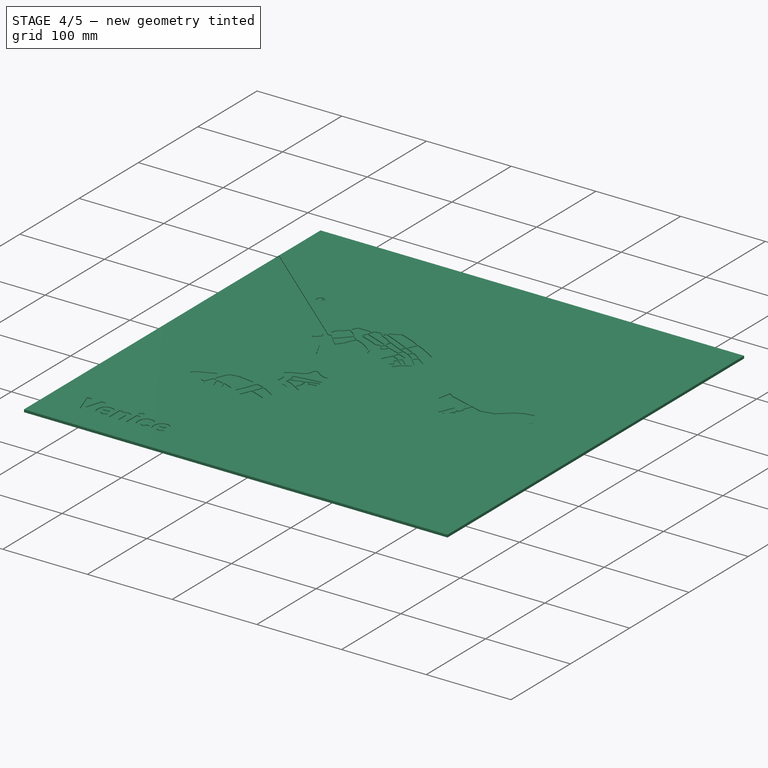
[diagram: stage 4 of 5 — iso view after this stage's code; geometry added in this stage tinted green]
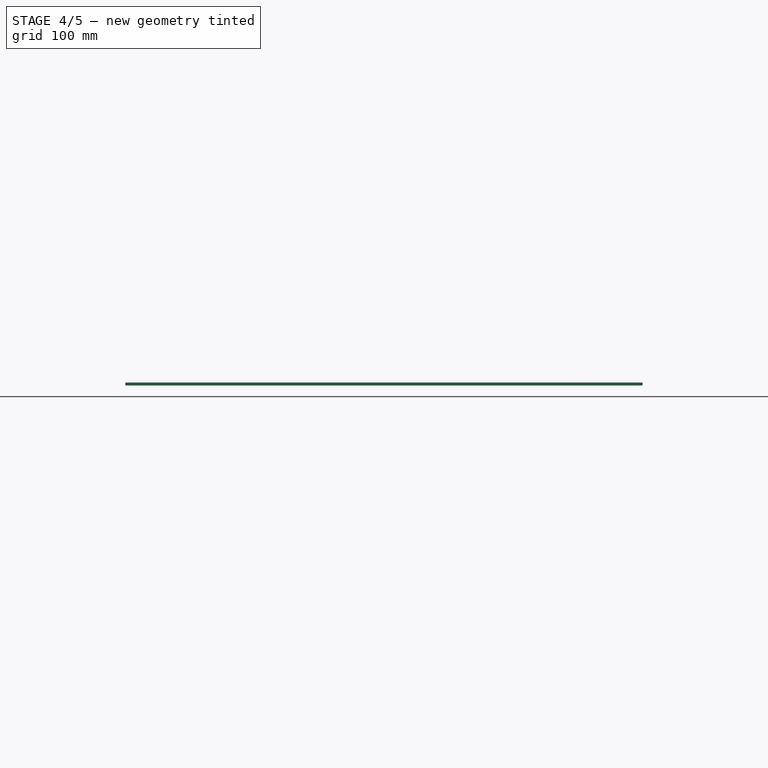
[diagram: stage 4 of 5 — front view after this stage's code; geometry added in this stage tinted green]
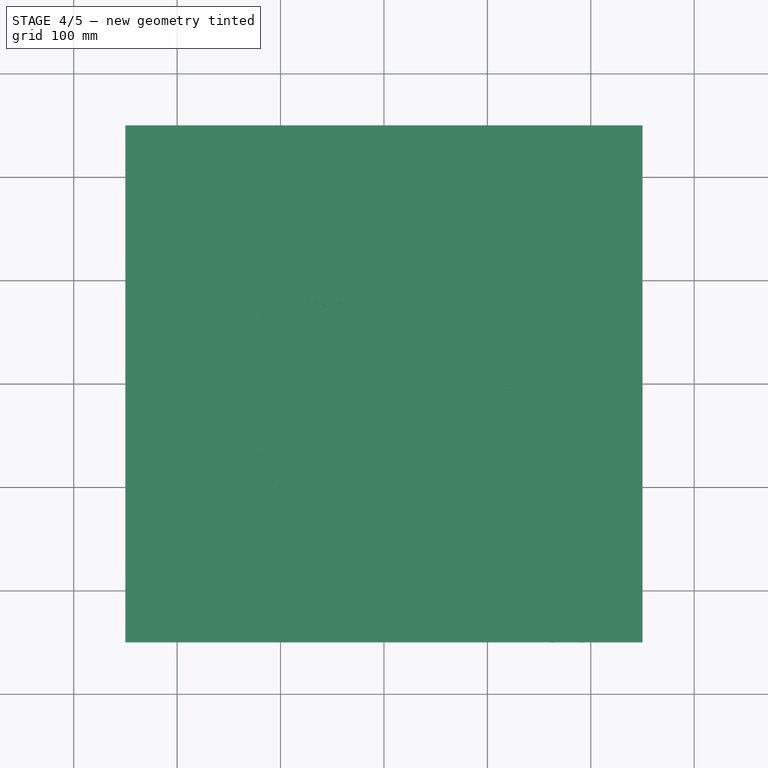
[diagram: stage 4 of 5 — top view after this stage's code; geometry added in this stage tinted green]
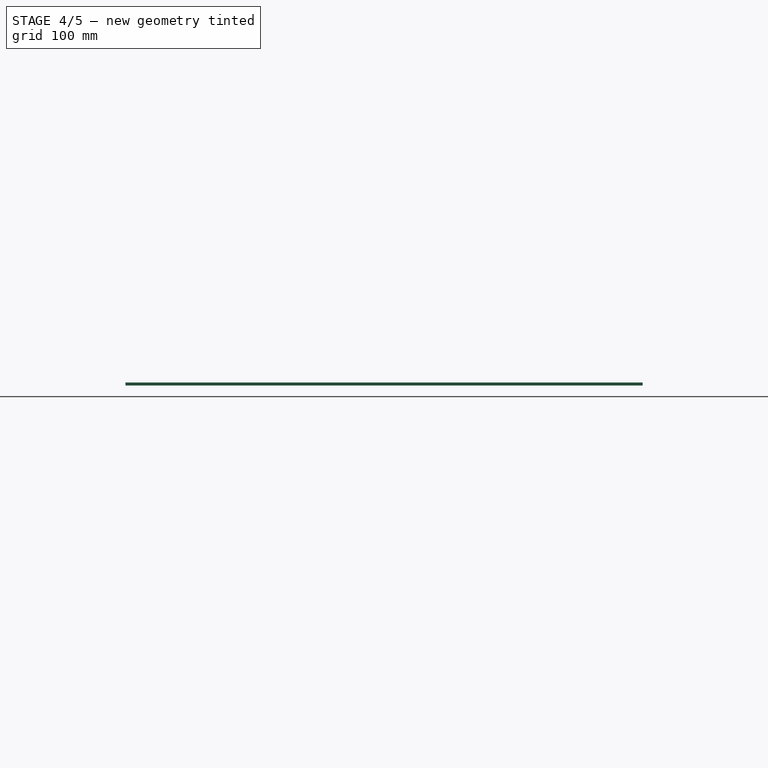
[diagram: stage 4 of 5 — right view after this stage's code; geometry added in this stage tinted green]
FEATURE [Part::Extrusion] Extrude049
  Base = -> Wire076
  Dir = (0,0,-1)
  DirMode = 0
  FaceMakerClass = Part::FaceMakerBullseye
  LengthFwd = 1
  LengthRev = 0
  Solid = true
  Symmetric = false
FEATURE [Part::Extrusion] Extrude050
  Base = -> Wire077
  Dir = (0,0,-1)
  DirMode = 0
  FaceMakerClass = Part::FaceMakerBullseye
  LengthFwd = 1
  LengthRev = 0
  Solid = true
  Symmetric = false
FEATURE [Part::Extrusion] Extrude051
  Base = -> Wire078
  Dir = (0,0,-1)
  DirMode = 0
  FaceMakerClass = Part::FaceMakerBullseye
  LengthFwd = 1
  LengthRev = 0
  Solid = true
  Symmetric = false
FEATURE [Part::Extrusion] Extrude052
  Base = -> Wire079
  Dir = (0,0,-1)
  DirMode = 0
  FaceMakerClass = Part::FaceMakerBullseye
  LengthFwd = 1
  LengthRev = 0
  Solid = true
  Symmetric = false
FEATURE [Part::Extrusion] Extrude053
  Base = -> Wire080
  Dir = (0,0,-1)
  DirMode = 0
  FaceMakerClass = Part::FaceMakerBullseye
  LengthFwd = 1
  LengthRev = 0
  Solid = true
  Symmetric = false
FEATURE [Part::Extrusion] Extrude054
  Base = -> Wire081
  Dir = (0,0,-1)
  DirMode = 0
  FaceMakerClass = Part::FaceMakerBullseye
  LengthFwd = 1
  LengthRev = 0
  Solid = true
  Symmetric = false
FEATURE [Part::Extrusion] Extrude055
  Base = -> Wire082
  Dir = (0,0,-1)
  DirMode = 0
  FaceMakerClass = Part::FaceMakerBullseye
  LengthFwd = 1
  LengthRev = 0
  Solid = true
  Symmetric = false
FEATURE [Part::Extrusion] Extrude087
  Base = -> Wire098
  Dir = (0,0,-1)
  DirMode = 0
  FaceMakerClass = Part::FaceMakerBullseye
  LengthFwd = 1
  LengthRev = 0
  Solid = true
  Symmetric = false
FEATURE [Part::Extrusion] Extrude088
  Base = -> Wire099
  Dir = (0,0,-1)
  DirMode = 0
  FaceMakerClass = Part::FaceMakerBullseye
  LengthFwd = 1
  LengthRev = 0
  Solid = true
  Symmetric = false
FEATURE [Part::Extrusion] Extrude089
  Base = -> Wire100
  Dir = (0,0,-1)
  DirMode = 0
  FaceMakerClass = Part::FaceMakerBullseye
  LengthFwd = 1
  LengthRev = 0
  Solid = true
  Symmetric = false
FEATURE [Part::Extrusion] Extrude090
  Base = -> Wire075
  Dir = (0,0,-1)
  DirMode = 0
  FaceMakerClass = Part::FaceMakerBullseye
  LengthFwd = 1
  LengthRev = 0
  Solid = true
  Symmetric = false
FEATURE [Part::Extrusion] Extrude091
  Base = -> Wire084
  Dir = (0,0,-1)
  DirMode = 0
  FaceMakerClass = Part::FaceMakerBullseye
  LengthFwd = 1
  LengthRev = 0
  Solid = true
  Symmetric = false
FEATURE [Part::Extrusion] Extrude092
  Base = -> Wire088
  Dir = (0,0,-1)
  DirMode = 0
  FaceMakerClass = Part::FaceMakerBullseye
  LengthFwd = 1
  LengthRev = 0
  Solid = true
  Symmetric = false
FEATURE [Part::Extrusion] Extrude093
  Base = -> Wire089
  Dir = (0,0,-1)
  DirMode = 0
  FaceMakerClass = Part::FaceMakerBullseye
  LengthFwd = 1
  LengthRev = 0
  Solid = true
  Symmetric = false
FEATURE [Part::Feature] Wire120
  shape: bbox 11.49 x 19.67 x 2e-07 mm, 0 faces, 0 solids (baked)
FEATURE [Part::Feature] Wire121
  shape: bbox 5.667 x 17.29 x 2e-07 mm, 0 faces, 0 solids (baked)
FEATURE [Part::Feature] Wire122
  shape: bbox 6.581 x 13.85 x 2e-07 mm, 0 faces, 0 solids (baked)
FEATURE [Part::Extrusion] Extrude094
  Base = -> Wire090
  Dir = (0,0,-1)
  DirMode = 0
  FaceMakerClass = Part::FaceMakerBullseye
  LengthFwd = 1
  LengthRev = 0
  Solid = true
  Symmetric = false
FEATURE [Part::Extrusion] Extrude095
  Base = -> Wire091
  Dir = (0,0,-1)
  DirMode = 0
  FaceMakerClass = Part::FaceMakerBullseye
  LengthFwd = 1
  LengthRev = 0
  Solid = true
  Symmetric = false
FEATURE [Part::Extrusion] Extrude096
  Base = -> Wire092
  Dir = (0,0,-1)
  DirMode = 0
  FaceMakerClass = Part::FaceMakerBullseye
  LengthFwd = 1
  LengthRev = 0
  Solid = true
  Symmetric = false
FEATURE [Part::Extrusion] Extrude097
  Base = -> Wire094
  Dir = (0,0,-1)
  DirMode = 0
  FaceMakerClass = Part::FaceMakerBullseye
  LengthFwd = 1
  LengthRev = 0
  Solid = true
  Symmetric = false
FEATURE [Part::Extrusion] Extrude098
  Base = -> Wire095
  Dir = (0,0,-1)
  DirMode = 0
  FaceMakerClass = Part::FaceMakerBullseye
  LengthFwd = 1
  LengthRev = 0
  Solid = true
  Symmetric = false
FEATURE [Part::Extrusion] Extrude099
  Base = -> Wire096
  Dir = (0,0,-1)
  DirMode = 0
  FaceMakerClass = Part::FaceMakerBullseye
  LengthFwd = 1
  LengthRev = 0
  Solid = true
  Symmetric = false
FEATURE [Part::Extrusion] Extrude100
  Base = -> Wire097
  Dir = (0,0,-1)
  DirMode = 0
  FaceMakerClass = Part::FaceMakerBullseye
  LengthFwd = 1
  LengthRev = 0
  Solid = true
  Symmetric = false
FEATURE [Part::Extrusion] Extrude101
  Base = -> Wire120
  Dir = (0,0,-1)
  DirMode = 0
  FaceMakerClass = Part::FaceMakerBullseye
  LengthFwd = 1
  LengthRev = 0
  Solid = true
  Symmetric = false
FEATURE [Part::Extrusion] Extrude102
  Base = -> Wire121
  Dir = (0,0,-1)
  DirMode = 0
  FaceMakerClass = Part::FaceMakerBullseye
  LengthFwd = 1
  LengthRev = 0
  Solid = true
  Symmetric = false
FEATURE [Part::Extrusion] Extrude103
  Base = -> Wire122
  Dir = (0,0,-1)
  DirMode = 0
  FaceMakerClass = Part::FaceMakerBullseye
  LengthFwd = 1
  LengthRev = 0
  Solid = true
  Symmetric = false
FEATURE [Part::Extrusion] Extrude104
  Base = -> Wire093
  Dir = (0,0,-1)
  DirMode = 0
  FaceMakerClass = Part::FaceMakerBullseye
  LengthFwd = 1
  LengthRev = 0
  Solid = true
  Symmetric = false
FEATURE [Part::Part2DObjectPython] Line  # Draft 2D object (typed FeaturePython)
  ChamferSize = 0
  Closed = false
  End = (32.5865,-11.2826,0)
  FilletRadius = 0
  Length = 0.000416773
  MakeFace = false
  Points = (2) [(32.5868,-11.2823,0),(32.5865,-11.2826,0)]
  Start = (32.5868,-11.2823,0)
  Subdivisions = 0
FEATURE [Part::Feature] Wire123
  shape: bbox 17.96 x 19.77 x 2e-07 mm, 0 faces, 0 solids (baked)
FEATURE [Part::Feature] Wire124
  shape: bbox 15.35 x 24.79 x 2e-07 mm, 0 faces, 0 solids (baked)
FEATURE [Part::Extrusion] Extrude111
  Base = -> Wire123
  Dir = (0,0,-1)
  DirMode = 0
  FaceMakerClass = Part::FaceMakerBullseye
  LengthFwd = 1
  LengthRev = 0
  Solid = true
  Symmetric = false
FEATURE [Part::Extrusion] Extrude125
  Base = -> Wire063
  Dir = (0,0,-1)
  DirMode = 0
  FaceMakerClass = Part::FaceMakerBullseye
  LengthFwd = 1
  LengthRev = 0
  Solid = true
  Symmetric = false
FEATURE [Part::Part2DObjectPython] DWire  # Draft 2D object (typed FeaturePython)
  ChamferSize = 0
  Closed = false
  End = (180.172,-90.0562,0)
  FilletRadius = 0
  Length = 44.106
  MakeFace = false
  Points = (15) [(163.119,-79.8614,0),(163.119,-79.8614,0),(168.579,-79.8485,0),(172.027,-78.8566,0),(172.367,-82.011,0),(173.498,-80.2567,0),(174.493,-80.319,0),+8 more]
  Start = (163.119,-79.8614,0)
  Subdivisions = 0
FEATURE [Part::Part2DObjectPython] DWire001  # Draft 2D object (typed FeaturePython)
  ChamferSize = 0
  Closed = false
  End = (180.172,-90.0562,0)
  FilletRadius = 0
  Length = 70.001
  MakeFace = false
  Points = (9) [(163.119,-79.8614,0),(166.541,-109.953,0),(169.069,-114.178,0),(174.116,-113.017,0),(174.257,-112.74,0),(177.509,-110.478,0),(183.693,-108.591,0),+2 more]
  Start = (163.119,-79.8614,0)
  Subdivisions = 0
FEATURE [Part::Part2DObjectPython] DWire002  # Draft 2D object (typed FeaturePython)
  ChamferSize = 0
  Closed = true
  End = (166.541,-109.953,0)
  FilletRadius = 0
  Length = 114.098
  MakeFace = false
  Points = (19) [(163.119,-79.8614,0),(168.579,-79.8485,0),(172.027,-78.8566,0),(172.367,-82.011,0),(173.498,-80.2567,0),(174.493,-80.319,0),(179.366,-79.2083,0),+12 more]
  Start = (163.119,-79.8614,0)
  Subdivisions = 0
FEATURE [Part::Extrusion] Extrude126
  Base = -> DWire002
  Dir = (0,0,-1)
  DirMode = 0
  FaceMakerClass = Part::FaceMakerBullseye
  LengthFwd = 1
  LengthRev = 0
  Placement = pos=(0,0,3) rot=(0,0,1;0rad)
  Solid = true
  Symmetric = false
FEATURE [Part::MultiFuse] Fusion007
  Shapes = -> [Extrude094,Extrude097,Extrude104,Extrude096,Extrude095]
FEATURE [Part::MultiFuse] Fusion008
  Shapes = -> [Extrude100,Extrude099,Extrude098,Extrude103,Extrude102,Extrude087]
FEATURE [Part::MultiFuse] Fusion011  label="Fusion011ok"
  Shapes = -> [Fusion007,Extrude111]
FEATURE [Part::MultiFuse] Fusion012  label="Fusion012ok"
  Shapes = -> [Fusion008]
FEATURE [Part::MultiFuse] Fusion013  label="Fusion013ok"
  Shapes = -> [Extrude101,Extrude088,Extrude089]
FEATURE [Part::MultiFuse] Fusion014  label="Fusion014ok"
  Shapes = -> [Extrude090,Extrude049,Extrude050,Extrude051,Extrude052,Extrude053,Extrude055]
FEATURE [Part::MultiFuse] Fusion015  label="Fusion015 xxxx"
  Shapes = -> [Extrude054,Extrude091,Extrude092,Extrude093]
FEATURE [Part::MultiFuse] Fusion016  label="Fusion016 xxxx"
  Shapes = -> [Extrude081,Extrude079,Extrude056,Extrude048,Extrude080]
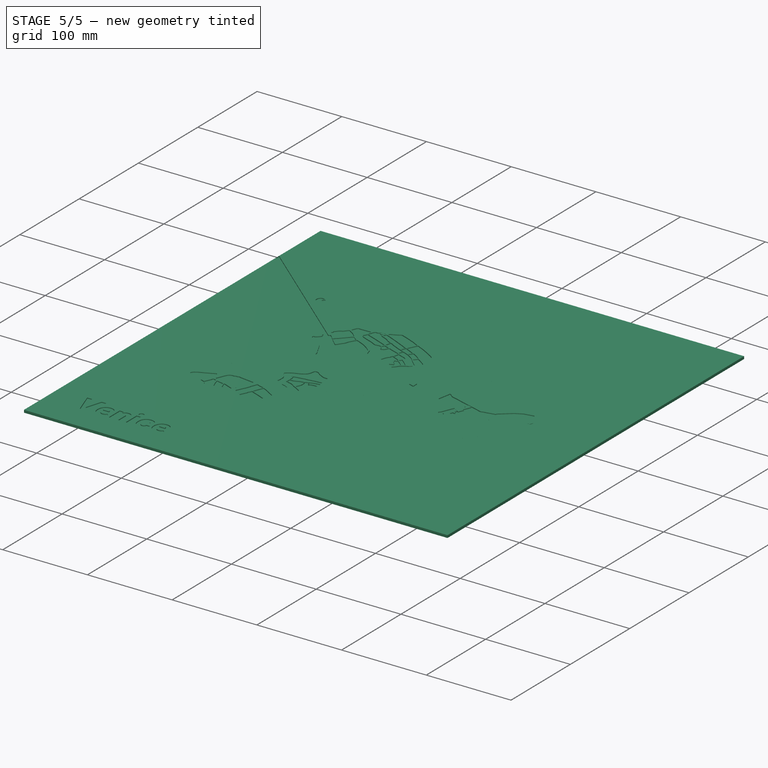
[diagram: stage 5 of 5 — iso view after this stage's code; geometry added in this stage tinted green]
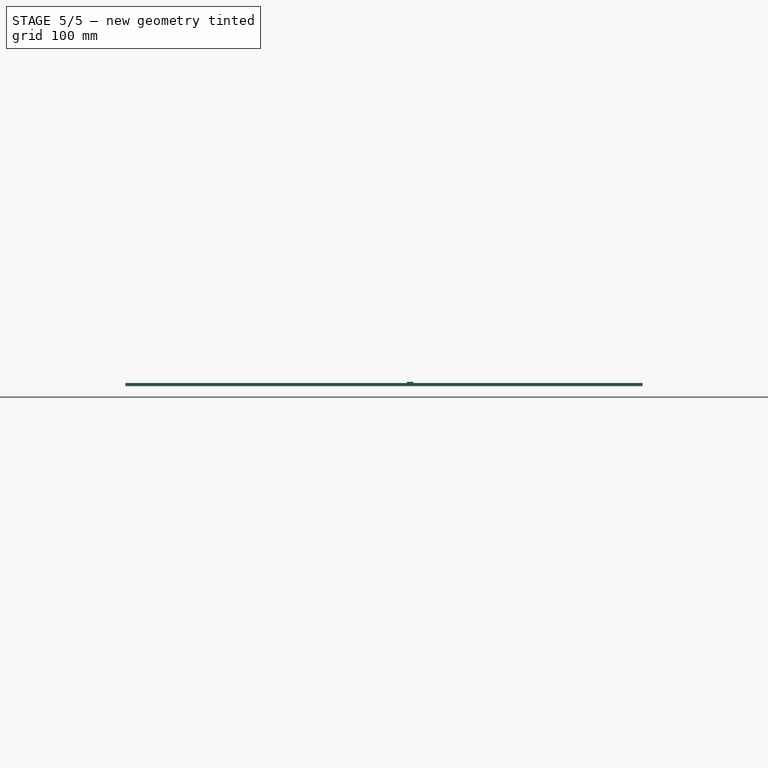
[diagram: stage 5 of 5 — front view after this stage's code; geometry added in this stage tinted green]
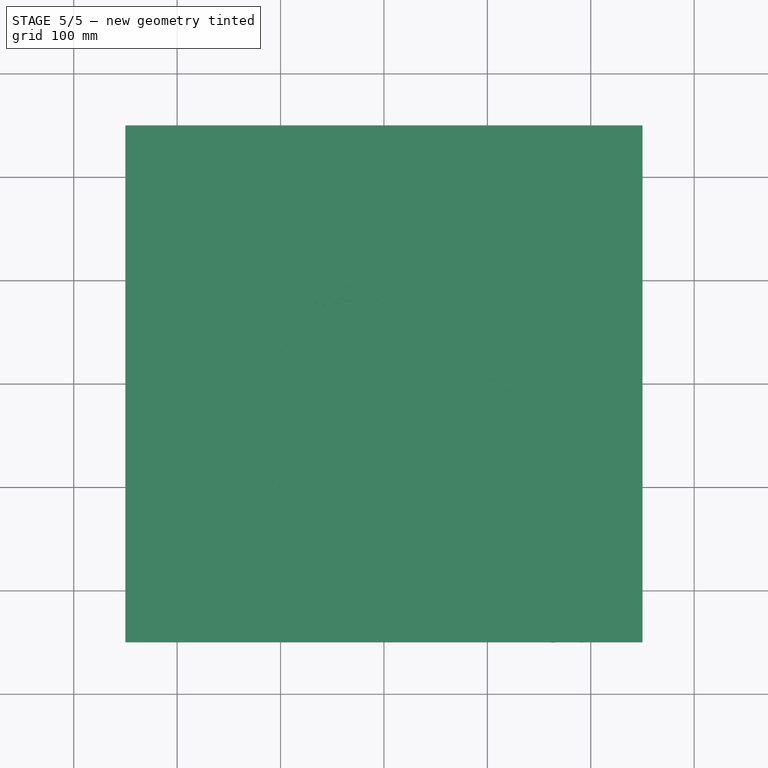
[diagram: stage 5 of 5 — top view after this stage's code; geometry added in this stage tinted green]
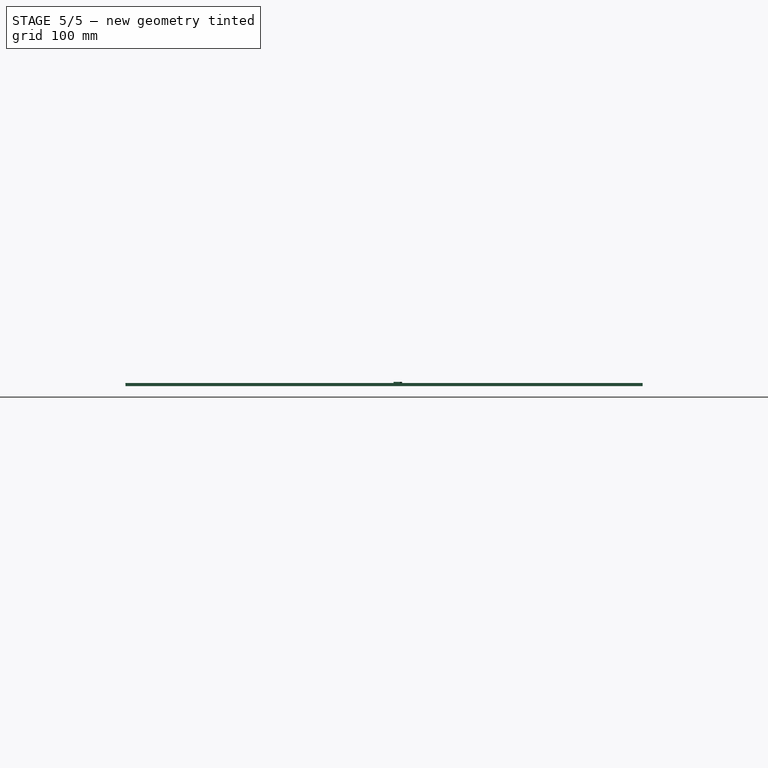
[diagram: stage 5 of 5 — right view after this stage's code; geometry added in this stage tinted green]
FEATURE [Part::Extrusion] Extrude030
  Base = -> Wire048
  Dir = (0,0,-1)
  DirMode = 0
  FaceMakerClass = Part::FaceMakerBullseye
  LengthFwd = 1
  LengthRev = 0
  Solid = true
  Symmetric = false
FEATURE [Part::Extrusion] Extrude031
  Base = -> Wire049
  Dir = (0,0,-1)
  DirMode = 0
  FaceMakerClass = Part::FaceMakerBullseye
  LengthFwd = 1
  LengthRev = 0
  Solid = true
  Symmetric = false
FEATURE [Part::Extrusion] Extrude032
  Base = -> Wire050
  Dir = (0,0,-1)
  DirMode = 0
  FaceMakerClass = Part::FaceMakerBullseye
  LengthFwd = 1
  LengthRev = 0
  Solid = true
  Symmetric = false
FEATURE [Part::Extrusion] Extrude034
  Base = -> Face006
  Dir = (0,0,-1)
  DirMode = 0
  FaceMakerClass = Part::FaceMakerBullseye
  LengthFwd = 1
  LengthRev = 0
  Solid = false
  Symmetric = false
FEATURE [Part::Extrusion] Extrude035
  Base = -> Face007
  Dir = (0,0,-1)
  DirMode = 0
  FaceMakerClass = Part::FaceMakerBullseye
  LengthFwd = 1
  LengthRev = 0
  Solid = false
  Symmetric = false
FEATURE [Part::Extrusion] Extrude036
  Base = -> Wire073
  Dir = (0,0,-1)
  DirMode = 0
  FaceMakerClass = Part::FaceMakerBullseye
  LengthFwd = 1
  LengthRev = 0
  Solid = true
  Symmetric = false
FEATURE [Part::Extrusion] Extrude037
  Base = -> Wire074
  Dir = (0,0,-1)
  DirMode = 0
  FaceMakerClass = Part::FaceMakerBullseye
  LengthFwd = 1
  LengthRev = 0
  Solid = true
  Symmetric = false
FEATURE [Part::Feature] Wire119
  shape: bbox 6.217 x 8.506 x 2e-07 mm, 0 faces, 0 solids (baked)
FEATURE [Part::Extrusion] Extrude038
  Base = -> Wire119
  Dir = (0,0,1)
  DirMode = 0
  FaceMakerClass = Part::FaceMakerBullseye
  LengthFwd = 1
  LengthRev = 0
  Solid = true
  Symmetric = false
FEATURE [Part::Extrusion] Extrude105
  Base = -> Wire067
  Dir = (0,0,-1)
  DirMode = 0
  FaceMakerClass = Part::FaceMakerBullseye
  LengthFwd = 1
  LengthRev = 0
  Solid = true
  Symmetric = false
FEATURE [Part::Extrusion] Extrude106
  Base = -> Wire068
  Dir = (0,0,-1)
  DirMode = 0
  FaceMakerClass = Part::FaceMakerBullseye
  LengthFwd = 1
  LengthRev = 0
  Solid = true
  Symmetric = false
FEATURE [Part::Extrusion] Extrude107
  Base = -> Wire069
  Dir = (0,0,-1)
  DirMode = 0
  FaceMakerClass = Part::FaceMakerBullseye
  LengthFwd = 1
  LengthRev = 0
  Solid = true
  Symmetric = false
FEATURE [Part::Extrusion] Extrude108
  Base = -> Wire070
  Dir = (0,0,-1)
  DirMode = 0
  FaceMakerClass = Part::FaceMakerBullseye
  LengthFwd = 1
  LengthRev = 0
  Solid = true
  Symmetric = false
FEATURE [Part::Extrusion] Extrude109
  Base = -> Wire071
  Dir = (0,0,-1)
  DirMode = 0
  FaceMakerClass = Part::FaceMakerBullseye
  LengthFwd = 1
  LengthRev = 0
  Solid = true
  Symmetric = false
FEATURE [Part::Extrusion] Extrude110
  Base = -> Wire072
  Dir = (0,0,-1)
  DirMode = 0
  FaceMakerClass = Part::FaceMakerBullseye
  LengthFwd = 1
  LengthRev = 0
  Solid = true
  Symmetric = false
FEATURE [Part::Extrusion] Extrude112
  Base = -> Wire124
  Dir = (0,0,-1)
  DirMode = 0
  FaceMakerClass = Part::FaceMakerBullseye
  LengthFwd = 1
  LengthRev = 0
  Solid = true
  Symmetric = false
FEATURE [Part::Extrusion] Extrude115
  Base = -> Wire052
  Dir = (0,0,-1)
  DirMode = 0
  FaceMakerClass = Part::FaceMakerBullseye
  LengthFwd = 1
  LengthRev = 0
  Solid = true
  Symmetric = false
FEATURE [Part::Extrusion] Extrude116
  Base = -> Wire064
  Dir = (0,0,-1)
  DirMode = 0
  FaceMakerClass = Part::FaceMakerBullseye
  LengthFwd = 1
  LengthRev = 0
  Solid = true
  Symmetric = false
FEATURE [Part::Extrusion] Extrude117
  Base = -> Wire065
  Dir = (0,0,-1)
  DirMode = 0
  FaceMakerClass = Part::FaceMakerBullseye
  LengthFwd = 1
  LengthRev = 0
  Solid = true
  Symmetric = false
FEATURE [Part::Extrusion] Extrude118
  Base = -> Wire066
  Dir = (0,0,-1)
  DirMode = 0
  FaceMakerClass = Part::FaceMakerBullseye
  LengthFwd = 1
  LengthRev = 0
  Solid = true
  Symmetric = false
FEATURE [Part::Extrusion] Extrude119
  Base = -> Wire057
  Dir = (0,0,-1)
  DirMode = 0
  FaceMakerClass = Part::FaceMakerBullseye
  LengthFwd = 1
  LengthRev = 0
  Solid = true
  Symmetric = false
FEATURE [Part::Extrusion] Extrude120
  Base = -> Wire058
  Dir = (0,0,-1)
  DirMode = 0
  FaceMakerClass = Part::FaceMakerBullseye
  LengthFwd = 1
  LengthRev = 0
  Solid = true
  Symmetric = false
FEATURE [Part::Extrusion] Extrude121
  Base = -> Wire059
  Dir = (0,0,-1)
  DirMode = 0
  FaceMakerClass = Part::FaceMakerBullseye
  LengthFwd = 1
  LengthRev = 0
  Solid = true
  Symmetric = false
FEATURE [Part::Extrusion] Extrude122
  Base = -> Wire060
  Dir = (0,0,-1)
  DirMode = 0
  FaceMakerClass = Part::FaceMakerBullseye
  LengthFwd = 1
  LengthRev = 0
  Solid = true
  Symmetric = false
FEATURE [Part::Extrusion] Extrude124
  Base = -> Wire062
  Dir = (0,0,-1)
  DirMode = 0
  FaceMakerClass = Part::FaceMakerBullseye
  LengthFwd = 1
  LengthRev = 0
  Solid = true
  Symmetric = false
FEATURE [Part::Extrusion] Extrude132  label="Extrude132 ok"
  Base = -> Wire055
  Dir = (0,0,-1)
  DirMode = 0
  FaceMakerClass = Part::FaceMakerBullseye
  LengthFwd = 1
  LengthRev = 0
  Solid = true
  Symmetric = false
FEATURE [Part::Feature] Wire126
  Placement = pos=(-594.5,310.5,3) rot=(0,0,1;0rad)
  shape: bbox 106.3 x 121.4 x 2e-07 mm, 0 faces, 0 solids (baked)
FEATURE [Part::Part2DObjectPython] DWire003  # Draft 2D object (typed FeaturePython)
  ChamferSize = 0
  Closed = true
  End = (79.9584,218.059,0)
  FilletRadius = 0
  Length = 222.227
  MakeFace = false
  Points = (29) [(71.4999,215.563,0),(67.2816,212.051,0),(68.0366,201.639,0),(69.2965,198.463,0),(68.4075,195.386,0),(71.4999,191.991,0),(96.88,194.317,0),+22 more]
  Start = (71.4999,215.563,0)
  Subdivisions = 0
FEATURE [Part::Extrusion] Extrude144
  Base = -> DWire003
  Dir = (0,0,-1)
  DirMode = 0
  FaceMakerClass = Part::FaceMakerBullseye
  LengthFwd = 1
  LengthRev = 0
  Placement = pos=(0,0,3) rot=(0,0,1;0rad)
  Solid = true
  Symmetric = false
FEATURE [Part::Part2DObjectPython] DWire004  # Draft 2D object (typed FeaturePython)
  ChamferSize = 0
  Closed = true
  End = (122.528,191.223,0)
  FilletRadius = 0
  Length = 259.938
  MakeFace = false
  Points = (44) [(124.825,199.996,0),(134.285,196.117,0),(139.574,192.593,0),(145.886,188.878,0),(153.824,183.178,0),(149.721,172.166,0),(149.11,169.702,0),+37 more]
  Start = (124.825,199.996,0)
  Subdivisions = 0
FEATURE [Part::Extrusion] Extrude145
  Base = -> DWire004
  Dir = (0,0,-1)
  DirMode = 0
  FaceMakerClass = Part::FaceMakerBullseye
  LengthFwd = 1
  LengthRev = 0
  Placement = pos=(0,0,3) rot=(0,0,1;0rad)
  Solid = true
  Symmetric = false
FEATURE [Part::Part2DObjectPython] DWire005  # Draft 2D object (typed FeaturePython)
  ChamferSize = 0
  Closed = true
  End = (153.483,178.596,0)
  FilletRadius = 0
  Length = 122.243
  MakeFace = false
  Points = (22) [(155.433,181.3,0),(158.523,177.824,0),(158.405,171.427,0),(156.385,166.093,0),(148.964,156.737,0),(147.836,154.652,0),(145.983,151.854,0),+15 more]
  Start = (155.433,181.3,0)
  Subdivisions = 0
FEATURE [Part::Extrusion] Extrude146
  Base = -> DWire005
  Dir = (0,0,-1)
  DirMode = 0
  FaceMakerClass = Part::FaceMakerBullseye
  LengthFwd = 1
  LengthRev = 0
  Placement = pos=(0,0,3) rot=(0,0,1;0rad)
  Solid = true
  Symmetric = false
FEATURE [Part::Extrusion] Extrude130
  Base = -> Wire125
  Dir = (0,0,-1)
  DirMode = 0
  FaceMakerClass = Part::FaceMakerBullseye
  LengthFwd = 1
  LengthRev = 0
  Solid = true
  Symmetric = false
FEATURE [Part::Part2DObjectPython] DWire006  # Draft 2D object (typed FeaturePython)
  ChamferSize = 0
  Closed = true
  End = (108.896,149.242,0)
  FilletRadius = 0
  Length = 365.851
  MakeFace = false
  Points = (80) [(109.87,144.366,0),(110.471,144.615,0),(110.283,146.454,0),(110.255,148.546,0),(110.808,148.928,0),(111.752,148.577,0),(116.151,148.566,0),+73 more]
  Start = (109.87,144.366,0)
  Subdivisions = 0
FEATURE [Part::Extrusion] Extrude147
  Base = -> DWire006
  Dir = (0,0,-1)
  DirMode = 0
  FaceMakerClass = Part::FaceMakerBullseye
  LengthFwd = 1
  LengthRev = 0
  Placement = pos=(0,0,3) rot=(0,0,1;0rad)
  Solid = true
  Symmetric = false
FEATURE [Part::MultiFuse] Fusion002  label="Fusion002 ok"
  Shapes = -> [Extrude030,Extrude037,Extrude038,Extrude031,Extrude032]
FEATURE [Part::MultiFuse] Fusion003
  Shapes = -> [Extrude126,Extrude122,Extrude119,Extrude124,Extrude125]
FEATURE [Part::MultiFuse] Fusion004  label="Fusion004ok"
  Shapes = -> [Extrude115,Extrude121,Extrude120,Extrude116,Extrude117]
FEATURE [Part::MultiFuse] Fusion005  label="Fusion005ok"
  Shapes = -> [Extrude105,Extrude118,Extrude106,Extrude107,Extrude108]
FEATURE [Part::MultiFuse] Fusion006  label="Fusion006ok"
  Shapes = -> [Extrude110,Extrude109,Extrude112,Extrude034,Extrude035,Extrude036]
FEATURE [Part::MultiFuse] Fusion009  label="Fusion009 ok"
  Shapes = -> [Extrude144,Extrude145,Extrude147,Extrude146]
FEATURE [Part::MultiFuse] Fusion010  label="Fusion010ok"
  Shapes = -> [Fusion003]
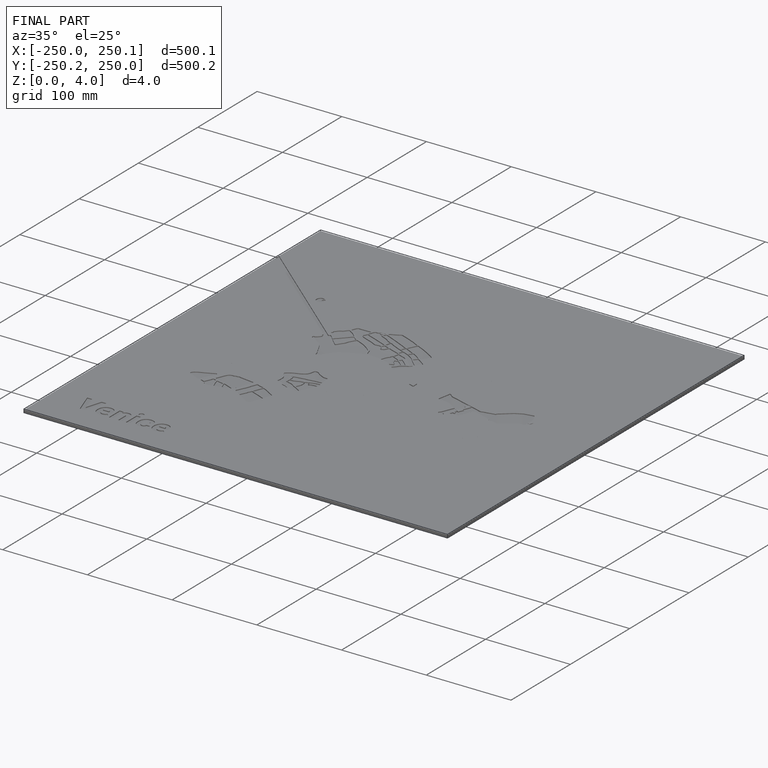
[diagram: finished part — iso view with bounding-box wireframe]
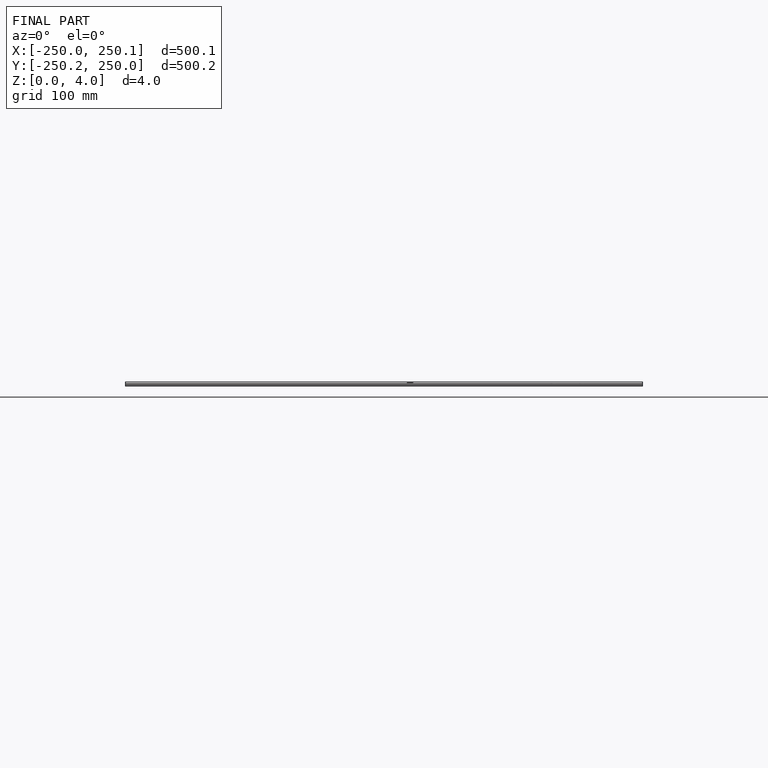
[diagram: finished part — front view with bounding-box wireframe]
